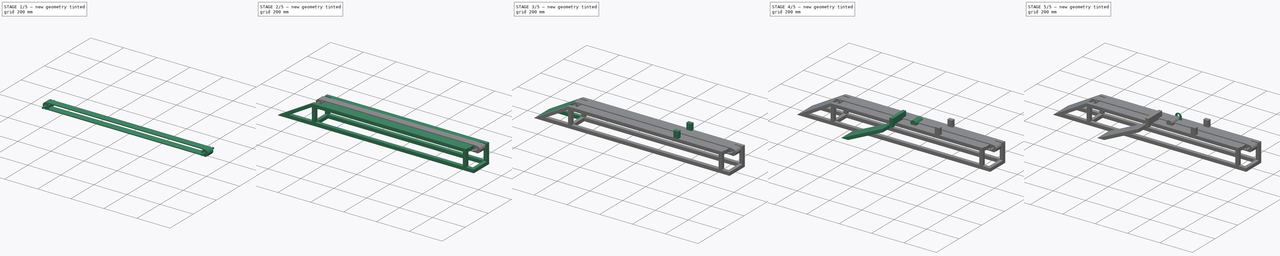
[diagram: build sequence overview — one tinted view per stage of 5, left to right]
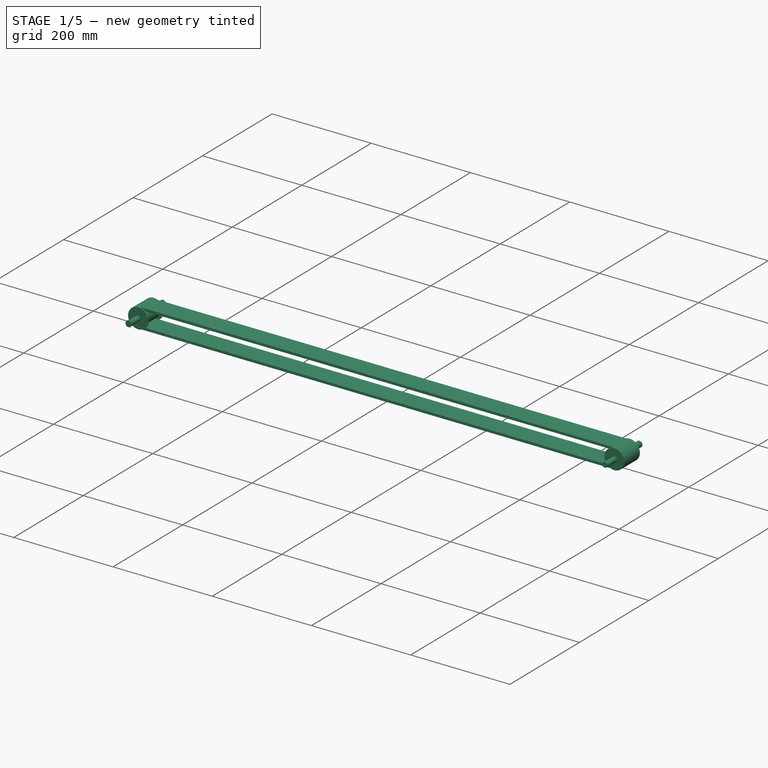
[diagram: stage 1 of 5 — iso view after this stage's code; geometry added in this stage tinted green]
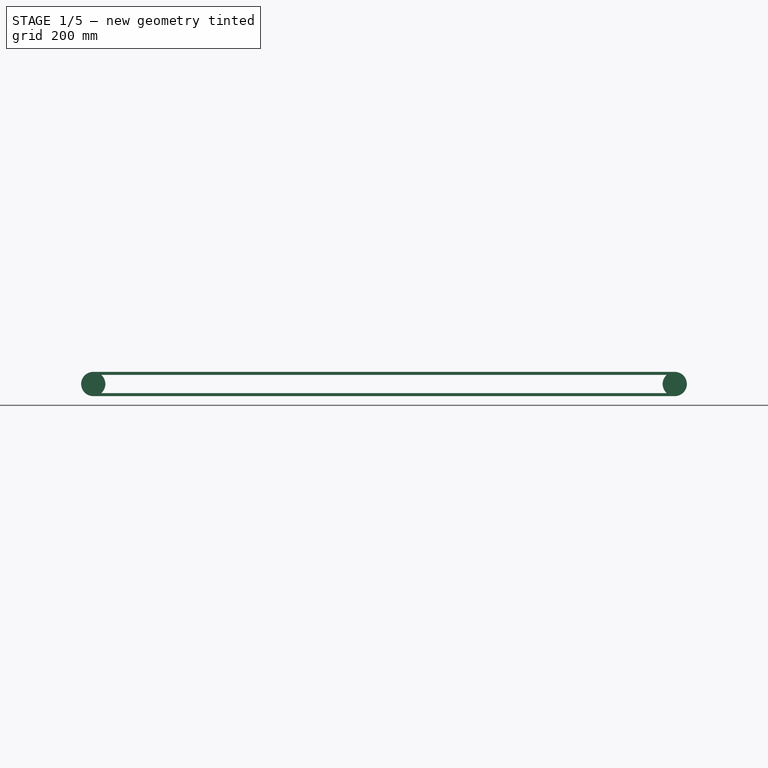
[diagram: stage 1 of 5 — front view after this stage's code; geometry added in this stage tinted green]
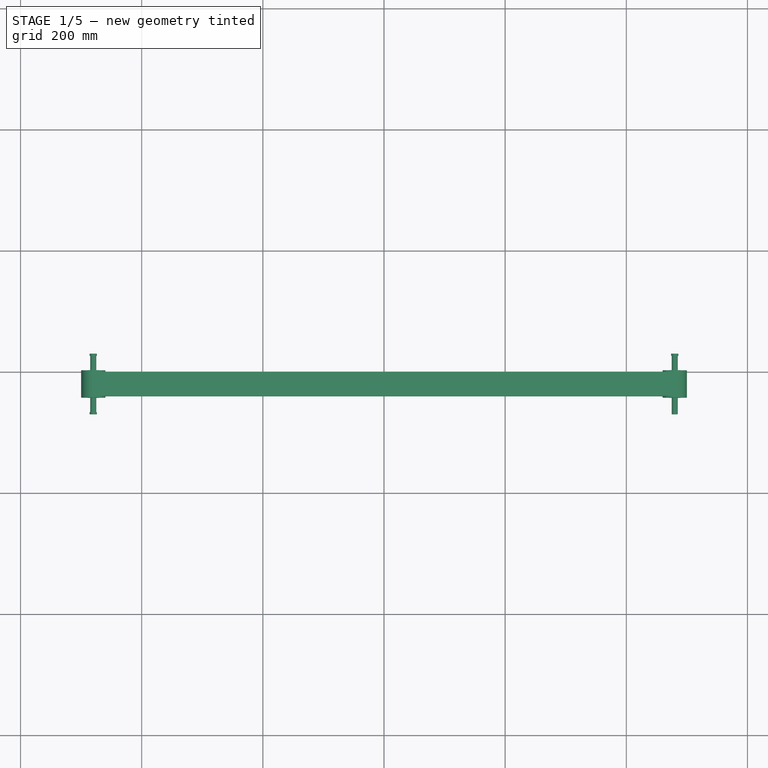
[diagram: stage 1 of 5 — top view after this stage's code; geometry added in this stage tinted green]
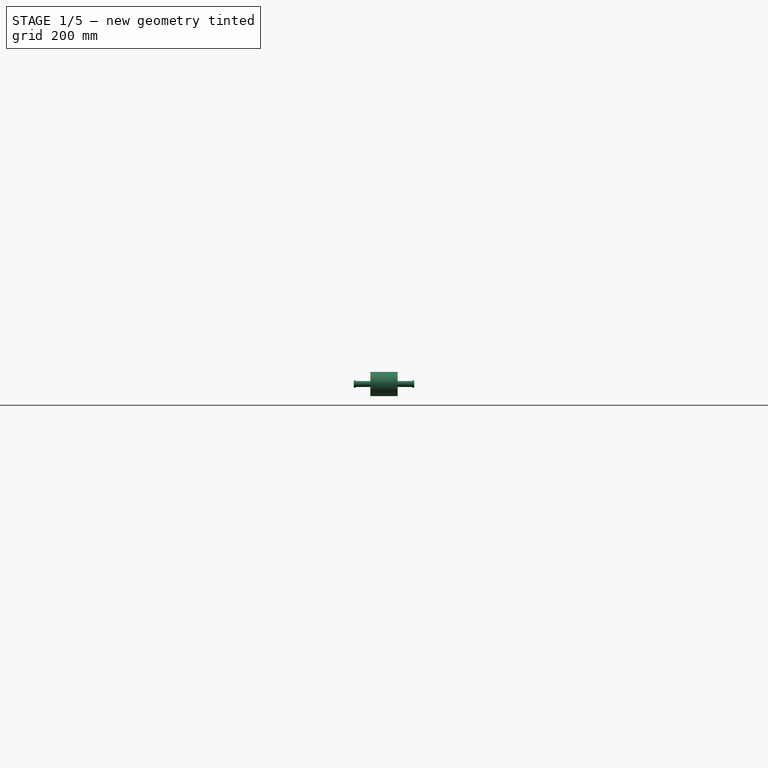
[diagram: stage 1 of 5 — right view after this stage's code; geometry added in this stage tinted green]
FCSTD DOCUMENT  (FreeCAD 0.20R29603 (Git))
Label: 기구도
License: All rights reserved
LicenseURL: http://en.wikipedia.org/wiki/All_rights_reserved
objects: Sketcher::SketchObject×43, PartDesign::Pad×32, PartDesign::Pocket×8, PartDesign::Fillet×4, PartDesign::Body×4, PartDesign::Plane×3, PartDesign::Mirrored×1
note: 139 computed .brp shape members not serialized (recipe doc carries the construction recipe); baked Part::Feature solids carry a one-line shape summary decoded from their .brp

FEATURE [Sketcher::SketchObject] Sketch
  FullyConstrained = true
  MapMode = 5
  Placement = pos=(0,0,0) rot=(1,0,0;1.5708rad)
  Support = -> [XZ_Plane]
  sketch-geometry (4):
    g0: LineSegment StartX=-480 StartY=20 StartZ=0 EndX=480 EndY=20 EndZ=0
    g1: LineSegment StartX=480 StartY=-20 StartZ=0 EndX=-480 EndY=-20 EndZ=0
    g2: ArcOfCircle CenterX=480 CenterY=3e-16 CenterZ=0 NormalX=0 NormalY=0 NormalZ=1 AngleXU=0 Radius=20 StartAngle=4.71239 EndAngle=7.85398
    g3: ArcOfCircle CenterX=-480 CenterY=0 CenterZ=0 NormalX=0 NormalY=0 NormalZ=1 AngleXU=0 Radius=20 StartAngle=1.5708 EndAngle=4.71239
  constraints (10):
    c: Horizontal(g0)
    c: Horizontal(g1)
    c: PointOnObject(g3,g-1)
    c: Diameter(g2) = 40
    c: Tangent(g2,g0) = 1.5708
    c: Tangent(g2,g1) = 1.5708
    c: Tangent(g3,g0) = 1.5708
    c: Tangent(g3,g1) = 1.5708
    c: DistanceX(g3,g2) = 960
    c: DistanceX(g-1,g2) = 480
FEATURE [PartDesign::Pad] Pad
  Direction = (0,-1,-2e-16)
  Length = 40
  Length2 = 10
  Placement = pos=(0,0,0) rot=(1,0,0;1.5708rad)
  Profile = -> Sketch
  ReferenceAxis = -> Sketch [N_Axis]
  Type = 0
FEATURE [Sketcher::SketchObject] Sketch001
  ExternalGeometry = -> [Pad]
  FullyConstrained = true
  MapMode = 5
  Placement = pos=(0,0,0) rot=(-1,0,0;1.5708rad)
  Support = -> [Pad]
  sketch-geometry (4):
    g0: LineSegment StartX=-480 StartY=15 StartZ=0 EndX=480 EndY=15 EndZ=0
    g1: LineSegment StartX=480 StartY=-15 StartZ=0 EndX=-480 EndY=-15 EndZ=0
    g2: ArcOfCircle CenterX=480 CenterY=-3e-16 CenterZ=0 NormalX=0 NormalY=0 NormalZ=1 AngleXU=0 Radius=15 StartAngle=4.71239 EndAngle=7.85398
    g3: ArcOfCircle CenterX=-480 CenterY=0 CenterZ=0 NormalX=0 NormalY=0 NormalZ=1 AngleXU=0 Radius=15 StartAngle=1.5708 EndAngle=4.71239
  constraints (9):
    c: Horizontal(g0)
    c: Horizontal(g1)
    c: Tangent(g3,g0) = 1.5708
    c: Tangent(g3,g1) = 1.5708
    c: Tangent(g2,g0) = 1.5708
    c: Coincident(g2,g1)
    c: Diameter(g2) = 30
    c: Coincident(g3,g-4)
    c: Coincident(g2,g-6)
FEATURE [PartDesign::Pocket] Pocket
  BaseFeature = -> Pad
  Direction = (0,-1,-2e-16)
  Length = 5
  Length2 = 5
  Placement = pos=(0,0,0) rot=(1,0,0;1.5708rad)
  Profile = -> Sketch001
  ReferenceAxis = -> Sketch001 [N_Axis]
  Type = 1
FEATURE [PartDesign::Plane] DatumPlane
  AttachmentOffset = pos=(0,0,-20) rot=(0,0,1;0rad)
  Length = 1288.24
  MapMode = 5
  Placement = pos=(0,-20,-4.4e-15) rot=(-1,0,0;1.5708rad)
  ResizeMode = 0
  Support = -> [Pocket]
  Width = 247.657
FEATURE [Sketcher::SketchObject] Sketch002
  ExternalGeometry = -> [Pocket]
  FullyConstrained = true
  MapMode = 5
  Placement = pos=(0,-20,-4.4e-15) rot=(-1,0,0;1.5708rad)
  Support = -> [DatumPlane]
  sketch-geometry (2):
    g0: Circle CenterX=-480 CenterY=0 CenterZ=0 NormalX=0 NormalY=0 NormalZ=1 AngleXU=0 Radius=15
    g1: Circle CenterX=480 CenterY=-3e-16 CenterZ=0 NormalX=0 NormalY=0 NormalZ=1 AngleXU=0 Radius=15
  constraints (4):
    c: Coincident(g0,g-3)
    c: PointOnObject(g-3,g0)
    c: Coincident(g1,g-4)
    c: PointOnObject(g-4,g1)
FEATURE [PartDesign::Pad] Pad001
  BaseFeature = -> Pocket
  Direction = (0,1,2e-16)
  Length = 40
  Length2 = 10
  Midplane = true
  Placement = pos=(0,0,0) rot=(1,0,0;1.5708rad)
  Profile = -> Sketch002
  ReferenceAxis = -> Sketch002 [N_Axis]
  Type = 0
FEATURE [Sketcher::SketchObject] Sketch003
  ExternalGeometry = -> [Pad001]
  FullyConstrained = true
  MapMode = 5
  Placement = pos=(0,3.6e-15,0) rot=(-1,0,0;1.5708rad)
  Support = -> [Pad001]
  sketch-geometry (2):
    g0: Circle CenterX=-480 CenterY=0 CenterZ=0 NormalX=0 NormalY=0 NormalZ=1 AngleXU=0 Radius=20
    g1: Circle CenterX=480 CenterY=-3e-16 CenterZ=0 NormalX=0 NormalY=0 NormalZ=1 AngleXU=0 Radius=20
  constraints (4):
    c: Coincident(g0,g-3)
    c: PointOnObject(g-3,g0)
    c: Coincident(g1,g-4)
    c: PointOnObject(g-4,g1)
FEATURE [PartDesign::Pad] Pad002
  BaseFeature = -> Pad001
  Direction = (0,1,2e-16)
  Length = 2.5
  Length2 = 10
  Placement = pos=(0,0,0) rot=(1,0,0;1.5708rad)
  Profile = -> Sketch003
  ReferenceAxis = -> Sketch003 [N_Axis]
  Type = 0
FEATURE [Sketcher::SketchObject] Sketch004
  ExternalGeometry = -> [Pad002]
  FullyConstrained = true
  MapMode = 5
  Placement = pos=(0,-40,-1.9e-15) rot=(1,0,0;1.5708rad)
  Support = -> [Pad002]
  sketch-geometry (2):
    g0: Circle CenterX=-480 CenterY=2.1e-15 CenterZ=0 NormalX=0 NormalY=0 NormalZ=1 AngleXU=0 Radius=20
    g1: Circle CenterX=480 CenterY=2.4e-15 CenterZ=0 NormalX=0 NormalY=0 NormalZ=1 AngleXU=0 Radius=20
  constraints (4):
    c: Coincident(g0,g-4)
    c: PointOnObject(g-4,g0)
    c: Coincident(g1,g-3)
    c: PointOnObject(g-3,g1)
FEATURE [PartDesign::Pad] Pad003
  BaseFeature = -> Pad002
  Direction = (0,-1,2e-16)
  Length = 2.5
  Length2 = 10
  Placement = pos=(0,0,0) rot=(1,0,0;1.5708rad)
  Profile = -> Sketch004
  ReferenceAxis = -> Sketch004 [N_Axis]
  Type = 0
FEATURE [Sketcher::SketchObject] Sketch005
  ExternalGeometry = -> [Pad003]
  FullyConstrained = true
  MapMode = 5
  Placement = pos=(0,2.5,0) rot=(-1,0,0;1.5708rad)
  Support = -> [Pad003]
  sketch-geometry (2):
    g0: Circle CenterX=-480 CenterY=0 CenterZ=0 NormalX=0 NormalY=0 NormalZ=1 AngleXU=0 Radius=5
    g1: Circle CenterX=480 CenterY=0 CenterZ=0 NormalX=0 NormalY=0 NormalZ=1 AngleXU=0 Radius=5
  constraints (4):
    c: Coincident(g0,g-4)
    c: Diameter(g0) = 10
    c: Coincident(g1,g-3)
    c: Diameter(g1) = 10
FEATURE [PartDesign::Pocket] Pocket001
  BaseFeature = -> Pad003
  Direction = (0,-1,2e-16)
  Length = 5
  Length2 = 5
  Placement = pos=(0,0,0) rot=(1,0,0;1.5708rad)
  Profile = -> Sketch005
  ReferenceAxis = -> Sketch005 [N_Axis]
  Type = 1
FEATURE [PartDesign::Plane] DatumPlane001
  AttachmentOffset = pos=(0,0,-22.5) rot=(0,0,1;0rad)
  Length = 1288.24
  MapMode = 5
  Placement = pos=(0,-20,-5e-15) rot=(-1,0,0;1.5708rad)
  ResizeMode = 0
  Support = -> [Pocket001]
  Width = 247.657
FEATURE [Sketcher::SketchObject] Sketch006
  ExternalGeometry = -> [Pocket001]
  FullyConstrained = true
  MapMode = 5
  Placement = pos=(0,-20,-5e-15) rot=(-1,0,0;1.5708rad)
  Support = -> [DatumPlane001]
  sketch-geometry (2):
    g0: Circle CenterX=-480 CenterY=0 CenterZ=0 NormalX=0 NormalY=0 NormalZ=1 AngleXU=0 Radius=5
    g1: Circle CenterX=480 CenterY=0 CenterZ=0 NormalX=0 NormalY=0 NormalZ=1 AngleXU=0 Radius=5
  constraints (4):
    c: Coincident(g0,g-4)
    c: Coincident(g1,g-3)
    c: Diameter(g1) = 10
    c: Diameter(g0) = 10
FEATURE [PartDesign::Pad] Pad004
  BaseFeature = -> Pocket001
  Direction = (0,1,-2e-16)
  Length = 100
  Length2 = 10
  Midplane = true
  Placement = pos=(0,0,0) rot=(1,0,0;1.5708rad)
  Profile = -> Sketch006
  ReferenceAxis = -> Sketch006 [N_Axis]
  Type = 0
FEATURE [Sketcher::SketchObject] Sketch007
  ExternalGeometry = -> [Pad004]
  FullyConstrained = true
  MapMode = 5
  Placement = pos=(0,30,-6.7e-15) rot=(-1,0,0;1.5708rad)
  Support = -> [Pad004]
  sketch-geometry (4):
    g0: Circle CenterX=-480 CenterY=0 CenterZ=0 NormalX=0 NormalY=0 NormalZ=1 AngleXU=0 Radius=4
    g1: Circle CenterX=-480 CenterY=0 CenterZ=0 NormalX=0 NormalY=0 NormalZ=1 AngleXU=0 Radius=6
    g2: Circle CenterX=480 CenterY=0 CenterZ=0 NormalX=0 NormalY=0 NormalZ=1 AngleXU=0 Radius=6
    g3: Circle CenterX=480 CenterY=0 CenterZ=0 NormalX=0 NormalY=0 NormalZ=1 AngleXU=0 Radius=4
  constraints (8):
    c: Coincident(g0,g-3)
    c: Coincident(g1,g0)
    c: Diameter(g0) = 8
    c: Diameter(g1) = 12
    c: Coincident(g2,g-4)
    c: Coincident(g3,g2)
    c: Diameter(g3) = 8
    c: Diameter(g2) = 12
FEATURE [PartDesign::Pad] Pad005
  BaseFeature = -> Pad004
  Direction = (0,1,-2e-16)
  Length = 3.5
  Length2 = 10
  Placement = pos=(0,0,0) rot=(1,0,0;1.5708rad)
  Profile = -> Sketch007
  ReferenceAxis = -> Sketch007 [N_Axis]
  Reversed = true
  Type = 0
FEATURE [Sketcher::SketchObject] Sketch008
  ExternalGeometry = -> [Pad005]
  FullyConstrained = true
  MapMode = 5
  Placement = pos=(0,-70,1.55e-14) rot=(1,0,0;1.5708rad)
  Support = -> [Pad005]
  sketch-geometry (2):
    g0: Circle CenterX=-480 CenterY=0 CenterZ=0 NormalX=0 NormalY=0 NormalZ=1 AngleXU=0 Radius=4
    g1: Circle CenterX=-480 CenterY=0 CenterZ=0 NormalX=0 NormalY=0 NormalZ=1 AngleXU=0 Radius=6
  constraints (4):
    c: Coincident(g0,g-3)
    c: Coincident(g1,g0)
    c: Diameter(g0) = 8
    c: Diameter(g1) = 12
FEATURE [PartDesign::Pad] Pad006
  BaseFeature = -> Pad005
  Direction = (0,-1,2e-16)
  Length = 3.5
  Length2 = 10
  Placement = pos=(0,0,0) rot=(1,0,0;1.5708rad)
  Profile = -> Sketch008
  ReferenceAxis = -> Sketch008 [N_Axis]
  Reversed = true
  Type = 0
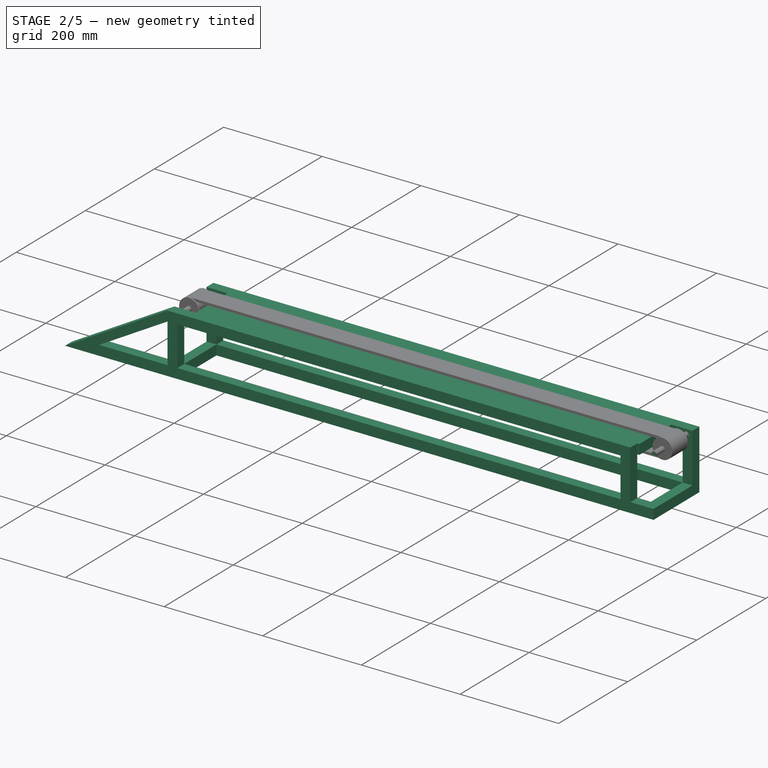
[diagram: stage 2 of 5 — iso view after this stage's code; geometry added in this stage tinted green]
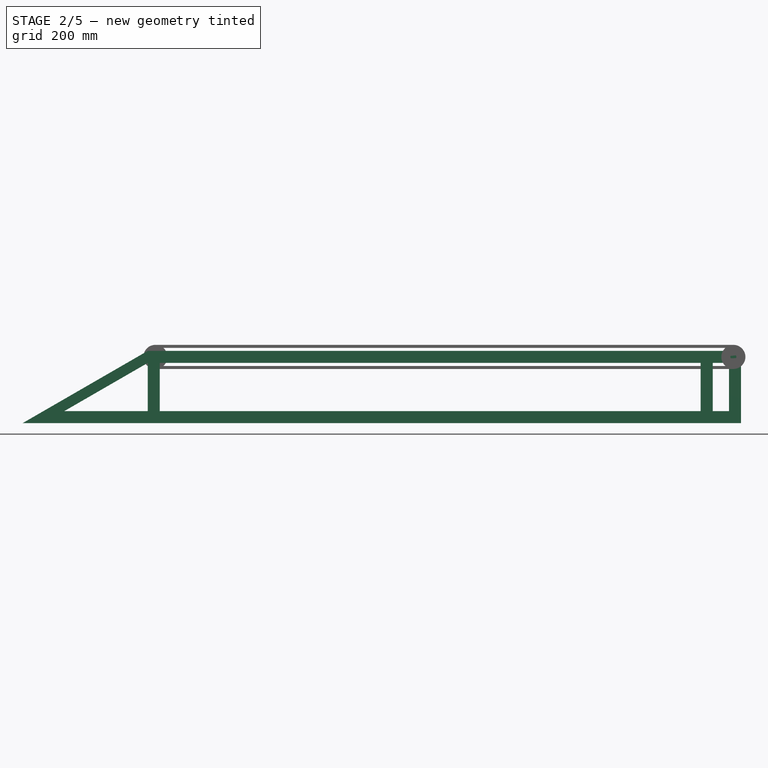
[diagram: stage 2 of 5 — front view after this stage's code; geometry added in this stage tinted green]
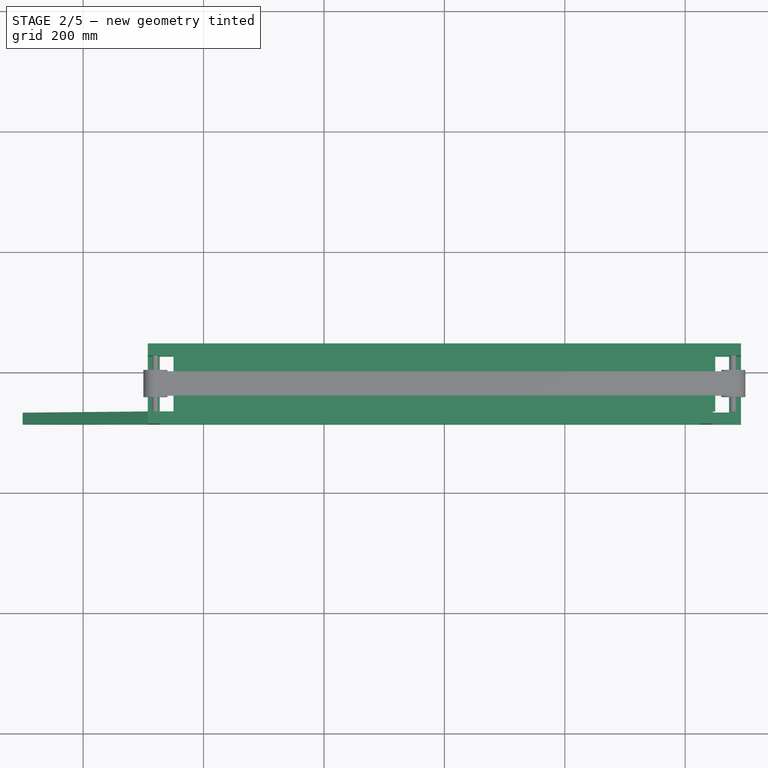
[diagram: stage 2 of 5 — top view after this stage's code; geometry added in this stage tinted green]
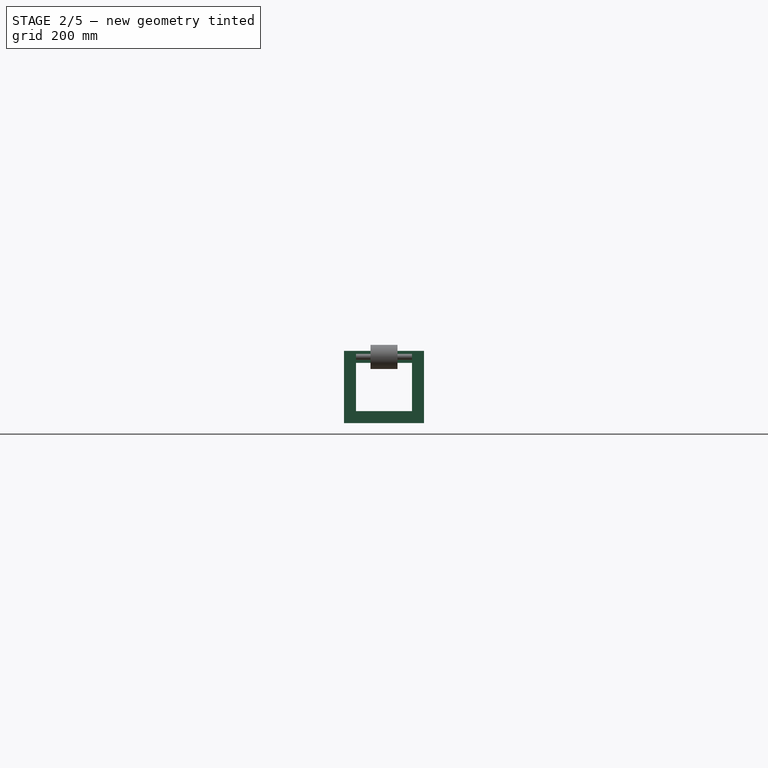
[diagram: stage 2 of 5 — right view after this stage's code; geometry added in this stage tinted green]
FEATURE [PartDesign::Plane] DatumPlane002
  Length = 271.616
  MapMode = 45
  Placement = pos=(-492.732,-20,-5.5e-15) rot=(0.57735,0.57735,0.57735;2.0944rad)
  ResizeMode = 0
  Support = -> [Pad006]
  Width = 198.616
FEATURE [Sketcher::SketchObject] Sketch009
  ExternalGeometry = -> [Pad006]
  FullyConstrained = false
  MapMode = 5
  Placement = pos=(-492.732,-20,-5.5e-15) rot=(0.57735,0.57735,0.57735;2.0944rad)
  Support = -> [DatumPlane002]
  sketch-geometry (5):
    g0: LineSegment StartX=46.5 StartY=10 StartZ=0 EndX=66.5 EndY=10 EndZ=0
    g1: LineSegment StartX=66.5 StartY=10 StartZ=0 EndX=66.5 EndY=-10 EndZ=0
    g2: LineSegment StartX=66.5 StartY=-10 StartZ=0 EndX=46.5 EndY=-10 EndZ=0
    g3: LineSegment StartX=46.5 StartY=-10 StartZ=0 EndX=46.5 EndY=10 EndZ=0
    g4: GeomPoint X=63.3667 Y=0 Z=0
  constraints (13):
    c: Coincident(g0,g1)
    c: Coincident(g1,g2)
    c: Coincident(g2,g3)
    c: Coincident(g3,g0)
    c: Horizontal(g0)
    c: Horizontal(g2)
    c: Vertical(g1)
    c: Vertical(g3)
    c: DistanceX(g0,g0) = 20
    c: DistanceY(g1,g1) = 20
    c: PointOnObject(g4,g-1)
    c: DistanceY(g4,g0) = 10
    c: PointOnObject(g-3,g3)
FEATURE [PartDesign::Pad] Pad007
  BaseFeature = -> Pad006
  Direction = (1,0,7e-16)
  Length = 985.46
  Length2 = 10
  Placement = pos=(0,0,0) rot=(1,0,0;1.5708rad)
  Profile = -> Sketch009
  ReferenceAxis = -> Sketch009 [N_Axis]
  Type = 0
FEATURE [PartDesign::Mirrored] Mirrored
  BaseFeature = -> Pad007
  MirrorPlane = -> Sketch009 [V_Axis]
  Originals = -> [Pad007]
  Placement = pos=(0,0,0) rot=(1,0,0;1.5708rad)
FEATURE [Sketcher::SketchObject] Sketch011
  ExternalGeometry = -> [Mirrored]
  FullyConstrained = true
  MapMode = 5
  Placement = pos=(6.7e-15,-1e-14,-10) rot=(1,0,0;3.14159rad)
  Support = -> [Mirrored]
  sketch-geometry (16):
    g0: LineSegment StartX=492.728 StartY=86.5 StartZ=0 EndX=472.728 EndY=86.5 EndZ=0
    g1: LineSegment StartX=472.728 StartY=86.5 StartZ=0 EndX=472.728 EndY=66.5 EndZ=0
    g2: LineSegment StartX=472.728 StartY=66.5 StartZ=0 EndX=492.728 EndY=66.5 EndZ=0
    g3: LineSegment StartX=492.728 StartY=66.5 StartZ=0 EndX=492.728 EndY=86.5 EndZ=0
    g4: LineSegment StartX=492.728 StartY=-26.5 StartZ=0 EndX=472.728 EndY=-26.5 EndZ=0
    g5: LineSegment StartX=472.728 StartY=-26.5 StartZ=0 EndX=472.728 EndY=-46.5 EndZ=0
    g6: LineSegment StartX=472.728 StartY=-46.5 StartZ=0 EndX=492.728 EndY=-46.5 EndZ=0
    g7: LineSegment StartX=492.728 StartY=-46.5 StartZ=0 EndX=492.728 EndY=-26.5 EndZ=0
    g8: LineSegment StartX=-492.732 StartY=86.5 StartZ=0 EndX=-472.732 EndY=86.5 EndZ=0
    g9: LineSegment StartX=-472.732 StartY=86.5 StartZ=0 EndX=-472.732 EndY=66.5 EndZ=0
    g10: LineSegment StartX=-472.732 StartY=66.5 StartZ=0 EndX=-492.732 EndY=66.5 EndZ=0
    g11: LineSegment StartX=-492.732 StartY=66.5 StartZ=0 EndX=-492.732 EndY=86.5 EndZ=0
    g12: LineSegment StartX=-492.732 StartY=-26.5 StartZ=0 EndX=-472.732 EndY=-26.5 EndZ=0
    g13: LineSegment StartX=-472.732 StartY=-26.5 StartZ=0 EndX=-472.732 EndY=-46.5 EndZ=0
    g14: LineSegment StartX=-472.732 StartY=-46.5 StartZ=0 EndX=-492.732 EndY=-46.5 EndZ=0
    g15: LineSegment StartX=-492.732 StartY=-46.5 StartZ=0 EndX=-492.732 EndY=-26.5 EndZ=0
  constraints (44):
    c: Coincident(g0,g1)
    c: Coincident(g1,g2)
    c: Coincident(g2,g3)
    c: Coincident(g3,g0)
    c: Horizontal(g0)
    c: Horizontal(g2)
    c: Vertical(g1)
    c: Vertical(g3)
    c: Coincident(g0,g-4)
    c: PointOnObject(g1,g-7)
    c: DistanceX(g0,g0) = 20
    c: Coincident(g4,g5)
    c: Coincident(g5,g6)
    c: Coincident(g6,g7)
    c: Coincident(g7,g4)
    c: Horizontal(g4)
    c: Horizontal(g6)
    c: Vertical(g5)
    c: Vertical(g7)
    c: Coincident(g4,g-8)
    c: PointOnObject(g5,g-6)
    c: Coincident(g8,g9)
    c: Coincident(g9,g10)
    c: Coincident(g10,g11)
    c: Coincident(g11,g8)
    c: Horizontal(g8)
    c: Horizontal(g10)
    c: Vertical(g9)
    c: Vertical(g11)
    c: Coincident(g8,g-4)
    c: PointOnObject(g9,g-7)
    c: Coincident(g12,g13)
    c: Coincident(g13,g14)
    c: Coincident(g14,g15)
    c: Coincident(g15,g12)
    c: Horizontal(g12)
    c: Horizontal(g14)
    c: Vertical(g13)
    c: Vertical(g15)
    c: Coincident(g12,g-8)
    c: PointOnObject(g13,g-6)
    c: Equal(g0,g4)
    c: Equal(g0,g8)
    c: Equal(g0,g12)
FEATURE [PartDesign::Pad] Pad008
  BaseFeature = -> Mirrored
  Direction = (7e-16,-9e-16,-1)
  Length = 100
  Length2 = 10
  Placement = pos=(0,0,0) rot=(1,0,0;1.5708rad)
  Profile = -> Sketch011
  ReferenceAxis = -> Sketch011 [N_Axis]
  Type = 0
FEATURE [Sketcher::SketchObject] Sketch012
  ExternalGeometry = -> [Pad008]
  FullyConstrained = true
  MapMode = 5
  Placement = pos=(0,26.5,-2.66e-14) rot=(1,0,0;1.5708rad)
  Support = -> [Pad008]
  sketch-geometry (8):
    g0: LineSegment StartX=492.728 StartY=-110 StartZ=0 EndX=472.728 EndY=-110 EndZ=0
    g1: LineSegment StartX=472.728 StartY=-110 StartZ=0 EndX=472.728 EndY=-90 EndZ=0
    g2: LineSegment StartX=472.728 StartY=-90 StartZ=0 EndX=492.728 EndY=-90 EndZ=0
    g3: LineSegment StartX=492.728 StartY=-90 StartZ=0 EndX=492.728 EndY=-110 EndZ=0
    g4: LineSegment StartX=-472.732 StartY=-110 StartZ=0 EndX=-492.732 EndY=-110 EndZ=0
    g5: LineSegment StartX=-492.732 StartY=-110 StartZ=0 EndX=-492.732 EndY=-90 EndZ=0
    g6: LineSegment StartX=-492.732 StartY=-90 StartZ=0 EndX=-472.732 EndY=-90 EndZ=0
    g7: LineSegment StartX=-472.732 StartY=-90 StartZ=0 EndX=-472.732 EndY=-110 EndZ=0
  constraints (22):
    c: Coincident(g0,g1)
    c: Coincident(g1,g2)
    c: Coincident(g2,g3)
    c: Coincident(g3,g0)
    c: Horizontal(g0)
    c: Horizontal(g2)
    c: Vertical(g1)
    c: Vertical(g3)
    c: Coincident(g0,g-5)
    c: PointOnObject(g1,g-4)
    c: DistanceY(g3,g3) = 20
    c: Coincident(g4,g5)
    c: Coincident(g5,g6)
    c: Coincident(g6,g7)
    c: Coincident(g7,g4)
    c: Horizontal(g4)
    c: Horizontal(g6)
    c: Vertical(g5)
    c: Vertical(g7)
    c: Coincident(g4,g-7)
    c: DistanceY(g7,g7) = 20
    c: PointOnObject(g5,g-8)
FEATURE [PartDesign::Pad] Pad009
  BaseFeature = -> Pad008
  Direction = (0,-1,7e-16)
  Length = 10
  Length2 = 10
  Placement = pos=(0,0,0) rot=(1,0,0;1.5708rad)
  Profile = -> Sketch012
  ReferenceAxis = -> Sketch012 [N_Axis]
  Type = 3
  UpToFace = -> Pad008 [Face6]
FEATURE [Sketcher::SketchObject] Sketch013
  ExternalGeometry = -> [Pad009]
  FullyConstrained = true
  MapMode = 5
  Placement = pos=(-472.732,0,-3.15e-13) rot=(0.707107,0,0.707107;3.14159rad)
  sketch-geometry (8):
    g0: LineSegment StartX=-110 StartY=86.5 StartZ=0 EndX=-90 EndY=86.5 EndZ=0
    g1: LineSegment StartX=-90 StartY=86.5 StartZ=0 EndX=-90 EndY=66.5 EndZ=0
    g2: LineSegment StartX=-90 StartY=66.5 StartZ=0 EndX=-110 EndY=66.5 EndZ=0
    g3: LineSegment StartX=-110 StartY=66.5 StartZ=0 EndX=-110 EndY=86.5 EndZ=0
    g4: LineSegment StartX=-110 StartY=-46.5 StartZ=0 EndX=-90 EndY=-46.5 EndZ=0
    g5: LineSegment StartX=-90 StartY=-46.5 StartZ=0 EndX=-90 EndY=-26.5 EndZ=0
    g6: LineSegment StartX=-90 StartY=-26.5 StartZ=0 EndX=-110 EndY=-26.5 EndZ=0
    g7: LineSegment StartX=-110 StartY=-26.5 StartZ=0 EndX=-110 EndY=-46.5 EndZ=0
  constraints (20):
    c: Coincident(g0,g1)
    c: Coincident(g1,g2)
    c: Coincident(g2,g3)
    c: Coincident(g3,g0)
    c: Horizontal(g0)
    c: Horizontal(g2)
    c: Vertical(g1)
    c: Vertical(g3)
    c: Coincident(g4,g5)
    c: Coincident(g5,g6)
    c: Coincident(g6,g7)
    c: Coincident(g7,g4)
    c: Horizontal(g4)
    c: Horizontal(g6)
    c: Vertical(g5)
    c: Vertical(g7)
    c: Coincident(g5,g-3)
    c: Coincident(g1,g-4)
    c: Coincident(g4,g-6)
    c: Coincident(g0,g-5)
FEATURE [PartDesign::Pad] Pad010
  BaseFeature = -> Pad009
  Direction = (1,0,1.1e-15)
  Length = 10
  Length2 = 10
  Placement = pos=(0,0,0) rot=(1,0,0;1.5708rad)
  Profile = -> Sketch013
  ReferenceAxis = -> Sketch013 [N_Axis]
  Type = 3
  UpToFace = -> Pad009 [Face15]
FEATURE [Sketcher::SketchObject] Sketch014
  ExternalGeometry = -> [Pad010]
  FullyConstrained = true
  MapMode = 5
  Placement = pos=(0,26.5,-2.07e-14) rot=(1,0,0;1.5708rad)
  Support = -> [Pad010]
  sketch-geometry (6):
    g0: LineSegment StartX=-450 StartY=10 StartZ=0 EndX=450 EndY=10 EndZ=0
    g1: LineSegment StartX=450 StartY=10 StartZ=0 EndX=450 EndY=-10 EndZ=0
    g2: LineSegment StartX=450 StartY=-10 StartZ=0 EndX=-450 EndY=-10 EndZ=0
    g3: LineSegment StartX=-450 StartY=-10 StartZ=0 EndX=-450 EndY=10 EndZ=0
    g4: GeomPoint X=-460 Y=0 Z=0
    g5: GeomPoint X=460 Y=0 Z=0
  constraints (16):
    c: Coincident(g0,g1)
    c: Coincident(g1,g2)
    c: Coincident(g2,g3)
    c: Coincident(g3,g0)
    c: Horizontal(g0)
    c: Horizontal(g2)
    c: Vertical(g1)
    c: Vertical(g3)
    c: PointOnObject(g0,g-3)
    c: PointOnObject(g1,g-4)
    c: DistanceX(g0,g0) = 900
    c: PointOnObject(g4,g-1)
    c: PointOnObject(g5,g-5)
    c: PointOnObject(g5,g-1)
    c: PointOnObject(g4,g-6)
    c: DistanceX(g-1,g0) = 450
FEATURE [PartDesign::Pad] Pad011
  BaseFeature = -> Pad010
  Direction = (0,-1,1.1e-15)
  Length = 10
  Length2 = 10
  Placement = pos=(0,0,0) rot=(1,0,0;1.5708rad)
  Profile = -> Sketch014
  ReferenceAxis = -> Sketch014 [N_Axis]
  Type = 3
  UpToFace = -> Pad010 [Face2]
FEATURE [PartDesign::Body] Body002  label="dc모터"
  Group = -> [Sketch022,Pad015,Sketch023,Pad016,Sketch024,Pad017,Fillet001,Sketch025,Pad018,Sketch026,Pocket005,Sketch027,Pocket006]
  Origin = -> Origin002
  Placement = pos=(454,-66.5,0) rot=(0,1,0;1.5708rad)
  Tip = -> Pocket006
FEATURE [Sketcher::SketchObject] Sketch028
  ExternalGeometry = -> [Pad011]
  FullyConstrained = true
  MapMode = 5
  Placement = pos=(492.728,0,0) rot=(0.707107,0,0.707107;3.14159rad)
  Support = -> [Pad011]
  sketch-geometry (4):
    g0: LineSegment StartX=10 StartY=86.5 StartZ=0 EndX=-90 EndY=86.5 EndZ=0
    g1: LineSegment StartX=-90 StartY=86.5 StartZ=0 EndX=-90 EndY=66.5 EndZ=0
    g2: LineSegment StartX=-90 StartY=66.5 StartZ=0 EndX=10 EndY=66.5 EndZ=0
    g3: LineSegment StartX=10 StartY=66.5 StartZ=0 EndX=10 EndY=86.5 EndZ=0
  constraints (10):
    c: Coincident(g0,g1)
    c: Coincident(g1,g2)
    c: Coincident(g2,g3)
    c: Coincident(g3,g0)
    c: Horizontal(g0)
    c: Horizontal(g2)
    c: Vertical(g1)
    c: Vertical(g3)
    c: Coincident(g0,g-3)
    c: Coincident(g1,g-4)
FEATURE [PartDesign::Pocket] Pocket007
  BaseFeature = -> Pad011
  Direction = (-1,0,2e-16)
  Length = 47
  Length2 = 5
  Placement = pos=(0,0,0) rot=(1,0,0;1.5708rad)
  Profile = -> Sketch028
  ReferenceAxis = -> Sketch028 [N_Axis]
  Type = 0
FEATURE [Sketcher::SketchObject] Sketch029
  ExternalGeometry = -> [Pocket007]
  FullyConstrained = true
  MapMode = 5
  Placement = pos=(9.99e-14,-1.01e-14,-90) rot=(0,0,1;3.14159rad)
  Support = -> [Pocket007]
  sketch-geometry (4):
    g0: LineSegment StartX=-445.728 StartY=66.5 StartZ=0 EndX=-425.728 EndY=66.5 EndZ=0
    g1: LineSegment StartX=-425.728 StartY=66.5 StartZ=0 EndX=-425.728 EndY=86.5 EndZ=0
    g2: LineSegment StartX=-425.728 StartY=86.5 StartZ=0 EndX=-445.728 EndY=86.5 EndZ=0
    g3: LineSegment StartX=-445.728 StartY=86.5 StartZ=0 EndX=-445.728 EndY=66.5 EndZ=0
  constraints (11):
    c: Coincident(g0,g1)
    c: Coincident(g1,g2)
    c: Coincident(g2,g3)
    c: Coincident(g3,g0)
    c: Horizontal(g0)
    c: Horizontal(g2)
    c: Vertical(g1)
    c: Vertical(g3)
    c: Coincident(g0,g-4)
    c: PointOnObject(g1,g-5)
    c: DistanceX(g2,g2) = 20
FEATURE [PartDesign::Pad] Pad019
  BaseFeature = -> Pocket007
  Direction = (-1.1e-15,3e-16,1)
  Length = 10
  Length2 = 10
  Placement = pos=(0,0,0) rot=(1,0,0;1.5708rad)
  Profile = -> Sketch029
  ReferenceAxis = -> Sketch029 [N_Axis]
  Type = 3
  UpToFace = -> Pocket007 [Face44]
FEATURE [Sketcher::SketchObject] Sketch030
  ExternalGeometry = -> [Pad019]
  FullyConstrained = true
  MapMode = 5
  Placement = pos=(0,-86.5,8.67e-14) rot=(1,0,0;1.5708rad)
  Support = -> [Pad019]
  sketch-geometry (6):
    g0: LineSegment StartX=-492.732 StartY=10 StartZ=0 EndX=-700.578 EndY=-110 EndZ=0
    g1: LineSegment StartX=-700.578 StartY=-110 StartZ=0 EndX=-492.732 EndY=-110 EndZ=0
    g2: LineSegment StartX=-492.732 StartY=-110 StartZ=0 EndX=-492.732 EndY=-90 EndZ=0
    g3: LineSegment StartX=-492.732 StartY=-90 StartZ=0 EndX=-631.296 EndY=-90 EndZ=0
    g4: LineSegment StartX=-631.296 StartY=-90 StartZ=0 EndX=-492.732 EndY=-10 EndZ=0
    g5: LineSegment StartX=-492.732 StartY=-10 StartZ=0 EndX=-492.732 EndY=10 EndZ=0
  constraints (15):
    c: Coincident(g-4,g0)
    c: Coincident(g0,g1)
    c: Coincident(g1,g-8)
    c: Horizontal(g1)
    c: Coincident(g1,g2)
    c: Coincident(g2,g3)
    c: Horizontal(g3)
    c: Coincident(g3,g4)
    c: Coincident(g4,g-5)
    c: Coincident(g4,g5)
    c: Coincident(g5,g0)
    c: Parallel(g0,g4)
    c: PointOnObject(g2,g-5)
    c: Equal(g5,g2)
    c: Angle(g0,g5) = 1.0472
FEATURE [PartDesign::Pad] Pad020
  BaseFeature = -> Pad019
  Direction = (0,-1,1.8e-15)
  Length = 10
  Length2 = 10
  Placement = pos=(0,0,0) rot=(1,0,0;1.5708rad)
  Profile = -> Sketch030
  ReferenceAxis = -> Sketch030 [N_Axis]
  Type = 3
  UpToFace = -> Pad019 [Face34]
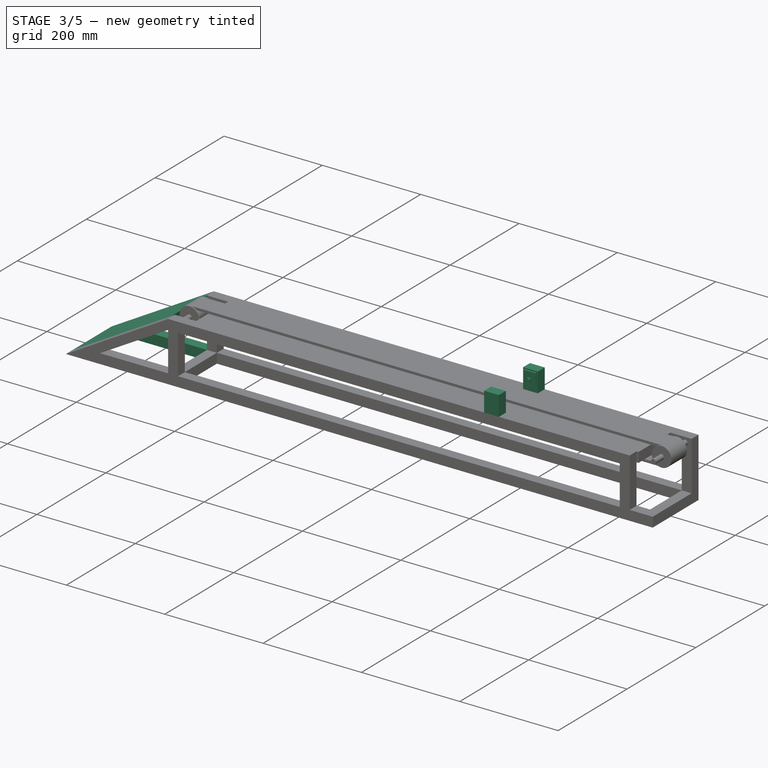
[diagram: stage 3 of 5 — iso view after this stage's code; geometry added in this stage tinted green]
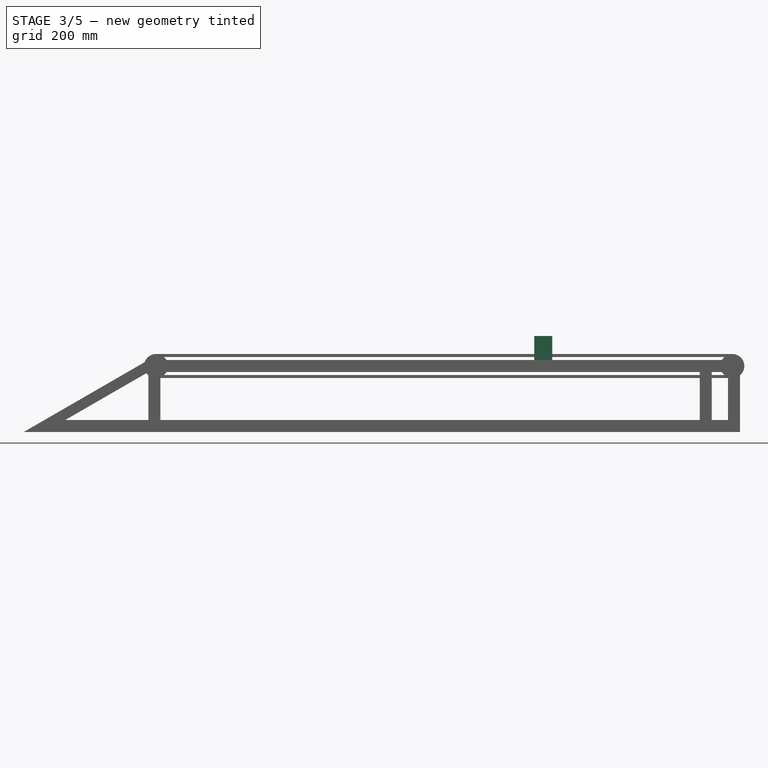
[diagram: stage 3 of 5 — front view after this stage's code; geometry added in this stage tinted green]
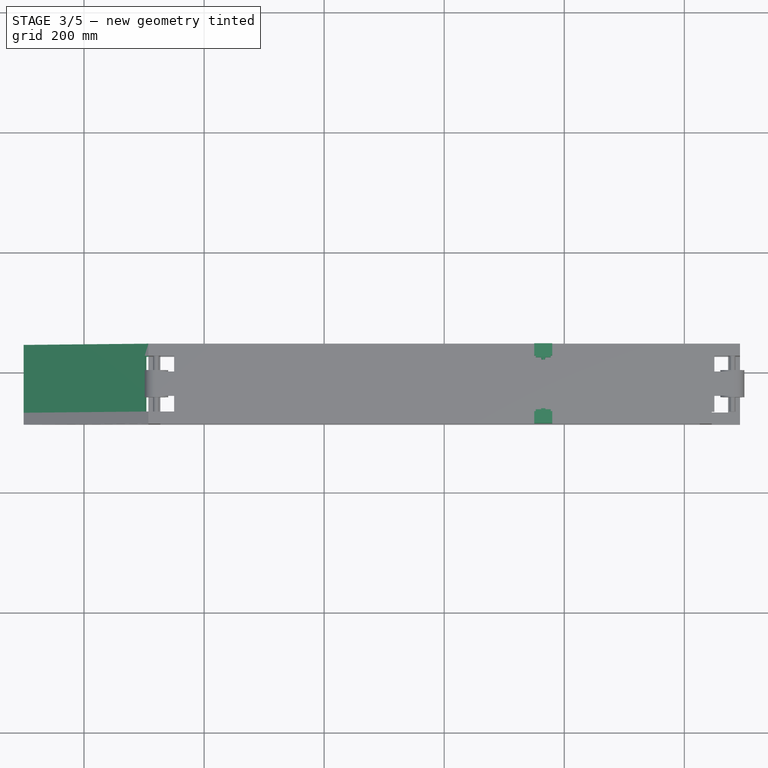
[diagram: stage 3 of 5 — top view after this stage's code; geometry added in this stage tinted green]
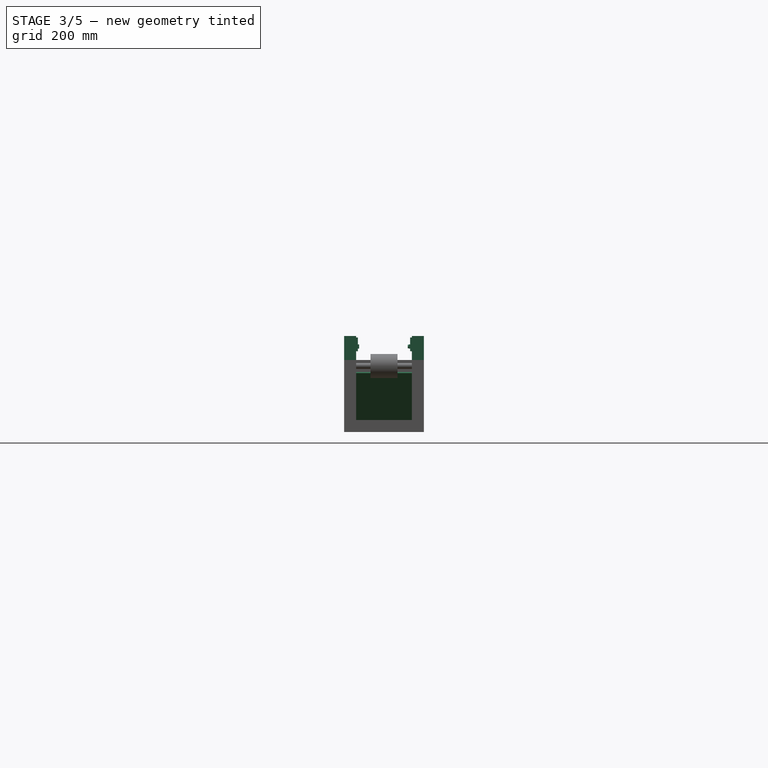
[diagram: stage 3 of 5 — right view after this stage's code; geometry added in this stage tinted green]
FEATURE [Sketcher::SketchObject] Sketch031
  ExternalGeometry = -> [Pad020]
  FullyConstrained = true
  MapMode = 5
  Placement = pos=(0,-66.5,1.105e-13) rot=(-1,0,0;1.5708rad)
  Support = -> [Pad020]
  sketch-geometry (4):
    g0: ArcOfCircle CenterX=-480 CenterY=5.3443e-12 CenterZ=0 NormalX=0 NormalY=0 NormalZ=1 AngleXU=0 Radius=20 StartAngle=2.50304 EndAngle=3.46806
    g1: LineSegment StartX=-498.944 StartY=-6.41394 StartZ=0 EndX=-700.578 EndY=110 EndZ=0
    g2: LineSegment StartX=-700.578 StartY=110 StartZ=0 EndX=-665.937 EndY=110 EndZ=0
    g3: LineSegment StartX=-665.937 StartY=110 StartZ=0 EndX=-496.059 EndY=11.9207 EndZ=0
  constraints (13):
    c: PointOnObject(g0,g-3)
    c: PointOnObject(g0,g-4)
    c: PointOnObject(g0,g-5)
    c: PointOnObject(g0,g-5)
    c: Diameter(g-5) = 40
    c: Diameter(g0) = 40
    c: Coincident(g0,g1)
    c: Coincident(g1,g2)
    c: Horizontal(g2)
    c: Coincident(g2,g3)
    c: Coincident(g3,g0)
    c: Coincident(g1,g-7)
    c: PointOnObject(g2,g-4)
FEATURE [PartDesign::Pad] Pad021
  BaseFeature = -> Pad020
  Direction = (0,1,-1.8e-15)
  Length = 10
  Length2 = 10
  Placement = pos=(0,0,0) rot=(1,0,0;1.5708rad)
  Profile = -> Sketch031
  ReferenceAxis = -> Sketch031 [N_Axis]
  Type = 3
  UpToFace = -> Pad020 [Face67]
FEATURE [Sketcher::SketchObject] Sketch032
  ExternalGeometry = -> [Pad021]
  FullyConstrained = true
  MapMode = 5
  Placement = pos=(0,46.5,-3.64e-14) rot=(-1,0,0;1.5708rad)
  Support = -> [Pad021]
  sketch-geometry (6):
    g0: LineSegment StartX=-492.732 StartY=-10 StartZ=0 EndX=-700.578 EndY=110 EndZ=0
    g1: LineSegment StartX=-700.578 StartY=110 StartZ=0 EndX=-492.732 EndY=110 EndZ=0
    g2: LineSegment StartX=-492.732 StartY=10 StartZ=0 EndX=-631.296 EndY=90 EndZ=0
    g3: LineSegment StartX=-492.732 StartY=90 StartZ=0 EndX=-631.296 EndY=90 EndZ=0
    g4: LineSegment StartX=-492.732 StartY=90 StartZ=0 EndX=-492.732 EndY=110 EndZ=0
    g5: LineSegment StartX=-492.732 StartY=-10 StartZ=0 EndX=-492.732 EndY=10 EndZ=0
  constraints (15):
    c: Coincident(g-4,g0)
    c: Coincident(g0,g1)
    c: Horizontal(g1)
    c: Coincident(g0,g-7)
    c: Coincident(g-9,g3)
    c: Horizontal(g3)
    c: PointOnObject(g3,g-8)
    c: Coincident(g2,g3)
    c: PointOnObject(g2,g-8)
    c: Coincident(g3,g4)
    c: Coincident(g4,g1)
    c: Vertical(g4)
    c: Coincident(g0,g5)
    c: Coincident(g5,g2)
    c: Vertical(g5)
FEATURE [PartDesign::Pad] Pad022
  BaseFeature = -> Pad021
  Direction = (0,1,-1.8e-15)
  Length = 10
  Length2 = 10
  Placement = pos=(0,0,0) rot=(1,0,0;1.5708rad)
  Profile = -> Sketch032
  ReferenceAxis = -> Sketch032 [N_Axis]
  Type = 3
  UpToFace = -> Pad021 [Face35]
FEATURE [Sketcher::SketchObject] Sketch033
  ExternalGeometry = -> [Pad022]
  FullyConstrained = true
  MapMode = 5
  Placement = pos=(-6.7e-15,1e-14,10) rot=(0,0,1;3.14159rad)
  Support = -> [Pad022]
  sketch-geometry (8):
    g0: LineSegment StartX=-180 StartY=86.5 StartZ=0 EndX=-150 EndY=86.5 EndZ=0
    g1: LineSegment StartX=-150 StartY=86.5 StartZ=0 EndX=-150 EndY=66.5 EndZ=0
    g2: LineSegment StartX=-150 StartY=66.5 StartZ=0 EndX=-180 EndY=66.5 EndZ=0
    g3: LineSegment StartX=-180 StartY=66.5 StartZ=0 EndX=-180 EndY=86.5 EndZ=0
    g4: LineSegment StartX=-180 StartY=-26.5 StartZ=0 EndX=-150 EndY=-26.5 EndZ=0
    g5: LineSegment StartX=-150 StartY=-26.5 StartZ=0 EndX=-150 EndY=-46.5 EndZ=0
    g6: LineSegment StartX=-150 StartY=-46.5 StartZ=0 EndX=-180 EndY=-46.5 EndZ=0
    g7: LineSegment StartX=-180 StartY=-46.5 StartZ=0 EndX=-180 EndY=-26.5 EndZ=0
  constraints (24):
    c: Coincident(g0,g1)
    c: Coincident(g1,g2)
    c: Coincident(g2,g3)
    c: Coincident(g3,g0)
    c: Horizontal(g0)
    c: Horizontal(g2)
    c: Vertical(g1)
    c: Vertical(g3)
    c: PointOnObject(g0,g-3)
    c: PointOnObject(g1,g-4)
    c: Coincident(g4,g5)
    c: Coincident(g5,g6)
    c: Coincident(g6,g7)
    c: Coincident(g7,g4)
    c: Horizontal(g4)
    c: Horizontal(g6)
    c: Vertical(g5)
    c: Vertical(g7)
    c: PointOnObject(g5,g-5)
    c: DistanceX(g0,g0) = 30
    c: Equal(g0,g4)
    c: PointOnObject(g4,g-6)
    c: DistanceX(g1,g-1) = 150
    c: Vertical(g2,g4)
FEATURE [PartDesign::Pad] Pad023
  BaseFeature = -> Pad022
  Direction = (-7e-16,1.9e-15,1)
  Length = 40
  Length2 = 10
  Placement = pos=(0,0,0) rot=(1,0,0;1.5708rad)
  Profile = -> Sketch033
  ReferenceAxis = -> Sketch033 [N_Axis]
  Type = 0
FEATURE [Sketcher::SketchObject] Sketch034
  ExternalGeometry = -> [Pad023]
  FullyConstrained = true
  MapMode = 5
  Placement = pos=(0,26.5,-5.31e-14) rot=(1,0,0;1.5708rad)
  Support = -> [Pad023]
  sketch-geometry (4):
    g0: LineSegment StartX=152.5 StartY=47.5 StartZ=0 EndX=177.5 EndY=47.5 EndZ=0
    g1: LineSegment StartX=177.5 StartY=47.5 StartZ=0 EndX=177.5 EndY=24.5 EndZ=0
    g2: LineSegment StartX=177.5 StartY=24.5 StartZ=0 EndX=152.5 EndY=24.5 EndZ=0
    g3: LineSegment StartX=152.5 StartY=24.5 StartZ=0 EndX=152.5 EndY=47.5 EndZ=0
  constraints (12):
    c: Coincident(g0,g1)
    c: Coincident(g1,g2)
    c: Coincident(g2,g3)
    c: Coincident(g3,g0)
    c: Horizontal(g0)
    c: Horizontal(g2)
    c: Vertical(g1)
    c: Vertical(g3)
    c: DistanceX(g0,g0) = 25
    c: DistanceY(g1,g1) = 23
    c: DistanceX(g0,g-5) = 2.5
    c: DistanceY(g0,g-5) = 2.5
FEATURE [PartDesign::Pad] Pad024
  BaseFeature = -> Pad023
  Direction = (0,-1,2.1e-15)
  Length = 3
  Length2 = 10
  Placement = pos=(0,0,0) rot=(1,0,0;1.5708rad)
  Profile = -> Sketch034
  ReferenceAxis = -> Sketch034 [N_Axis]
  Type = 0
FEATURE [Sketcher::SketchObject] Sketch036
  ExternalGeometry = -> [Pad024]
  FullyConstrained = true
  MapMode = 5
  Placement = pos=(0,23.5,-5.25e-14) rot=(1,0,0;1.5708rad)
  Support = -> [Pad024]
  sketch-geometry (4):
    g0: LineSegment StartX=161.5 StartY=36 StartZ=0 EndX=168.5 EndY=36 EndZ=0
    g1: LineSegment StartX=168.5 StartY=36 StartZ=0 EndX=168.5 EndY=29 EndZ=0
    g2: LineSegment StartX=168.5 StartY=29 StartZ=0 EndX=161.5 EndY=29 EndZ=0
    g3: LineSegment StartX=161.5 StartY=29 StartZ=0 EndX=161.5 EndY=36 EndZ=0
  constraints (13):
    c: Coincident(g0,g1)
    c: Coincident(g1,g2)
    c: Coincident(g2,g3)
    c: Coincident(g3,g0)
    c: Horizontal(g0)
    c: Horizontal(g2)
    c: Vertical(g1)
    c: Vertical(g3)
    c: DistanceX(g0,g0) = 7
    c: Equal(g0,g1)
    c: DistanceX(g-3,g-3) = 25
    c: DistanceX(g0,g-5) = 9
    c: DistanceY(g-6,g1) = 4.5
FEATURE [PartDesign::Pad] Pad025
  BaseFeature = -> Pad024
  Direction = (0,-1,2.4e-15)
  Length = 2
  Length2 = 10
  Placement = pos=(0,0,0) rot=(1,0,0;1.5708rad)
  Profile = -> Sketch036
  ReferenceAxis = -> Sketch036 [N_Axis]
  Type = 0
FEATURE [Sketcher::SketchObject] Sketch037
  ExternalGeometry = -> [Pad025]
  FullyConstrained = true
  MapMode = 5
  Placement = pos=(0,21.5,-5.94e-14) rot=(1,0,0;1.5708rad)
  Support = -> [Pad025]
  sketch-geometry (1):
    g0: Circle CenterX=165 CenterY=32.5 CenterZ=0 NormalX=0 NormalY=0 NormalZ=1 AngleXU=0 Radius=3
  constraints (3):
    c: Diameter(g0) = 6
    c: DistanceY(g0,g-4) = 3.5
    c: DistanceX(g0,g-4) = 3.5
FEATURE [PartDesign::Pad] Pad026
  BaseFeature = -> Pad025
  Direction = (0,-1,2.7e-15)
  Length = 2
  Length2 = 10
  Placement = pos=(0,0,0) rot=(1,0,0;1.5708rad)
  Profile = -> Sketch037
  ReferenceAxis = -> Sketch037 [N_Axis]
  Type = 0
FEATURE [PartDesign::Fillet] Fillet002
  Base = -> Pad026 [Edge310]
  BaseFeature = -> Pad026
  Placement = pos=(0,0,0) rot=(1,0,0;1.5708rad)
  Radius = 0.5
  SupportTransform = false
  UseAllEdges = false
FEATURE [Sketcher::SketchObject] Sketch038
  ExternalGeometry = -> [Fillet002]
  FullyConstrained = true
  MapMode = 5
  Placement = pos=(0,-66.5,1.331e-13) rot=(-1,0,0;1.5708rad)
  Support = -> [Fillet002]
  sketch-geometry (4):
    g0: LineSegment StartX=177.5 StartY=-47.5 StartZ=0 EndX=152.5 EndY=-47.5 EndZ=0
    g1: LineSegment StartX=152.5 StartY=-47.5 StartZ=0 EndX=152.5 EndY=-24.5 EndZ=0
    g2: LineSegment StartX=152.5 StartY=-24.5 StartZ=0 EndX=177.5 EndY=-24.5 EndZ=0
    g3: LineSegment StartX=177.5 StartY=-24.5 StartZ=0 EndX=177.5 EndY=-47.5 EndZ=0
  constraints (12):
    c: Coincident(g0,g1)
    c: Coincident(g1,g2)
    c: Coincident(g2,g3)
    c: Coincident(g3,g0)
    c: Horizontal(g0)
    c: Horizontal(g2)
    c: Vertical(g1)
    c: Vertical(g3)
    c: DistanceX(g0,g0) = 25
    c: DistanceY(g1,g1) = 23
    c: DistanceY(g-4,g0) = 2.5
    c: DistanceX(g-4,g0) = 2.5
FEATURE [PartDesign::Pad] Pad027
  BaseFeature = -> Fillet002
  Direction = (0,1,-2.4e-15)
  Length = 3
  Length2 = 10
  Placement = pos=(0,0,0) rot=(1,0,0;1.5708rad)
  Profile = -> Sketch038
  ReferenceAxis = -> Sketch038 [N_Axis]
  Type = 0
FEATURE [Sketcher::SketchObject] Sketch039
  ExternalGeometry = -> [Pad027]
  FullyConstrained = true
  MapMode = 5
  Placement = pos=(0,-63.5,1.709e-13) rot=(-1,0,0;1.5708rad)
  Support = -> [Pad027]
  sketch-geometry (4):
    g0: LineSegment StartX=168.5 StartY=-36 StartZ=0 EndX=161.5 EndY=-36 EndZ=0
    g1: LineSegment StartX=161.5 StartY=-36 StartZ=0 EndX=161.5 EndY=-29 EndZ=0
    g2: LineSegment StartX=161.5 StartY=-29 StartZ=0 EndX=168.5 EndY=-29 EndZ=0
    g3: LineSegment StartX=168.5 StartY=-29 StartZ=0 EndX=168.5 EndY=-36 EndZ=0
  constraints (12):
    c: Coincident(g0,g1)
    c: Coincident(g1,g2)
    c: Coincident(g2,g3)
    c: Coincident(g3,g0)
    c: Horizontal(g0)
    c: Horizontal(g2)
    c: Vertical(g1)
    c: Vertical(g3)
    c: Equal(g0,g1)
    c: DistanceX(g0,g0) = 7
    c: DistanceY(g1,g-4) = 4.5
    c: DistanceX(g-4,g0) = 9
FEATURE [PartDesign::Pad] Pad028
  BaseFeature = -> Pad027
  Direction = (0,1,-2.7e-15)
  Length = 2
  Length2 = 10
  Placement = pos=(0,0,0) rot=(1,0,0;1.5708rad)
  Profile = -> Sketch039
  ReferenceAxis = -> Sketch039 [N_Axis]
  Type = 0
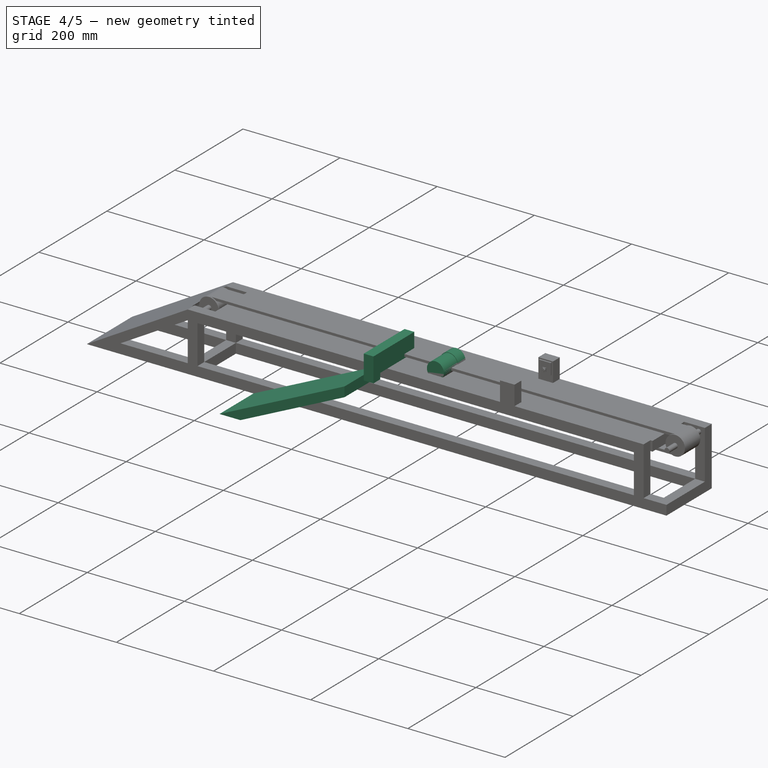
[diagram: stage 4 of 5 — iso view after this stage's code; geometry added in this stage tinted green]
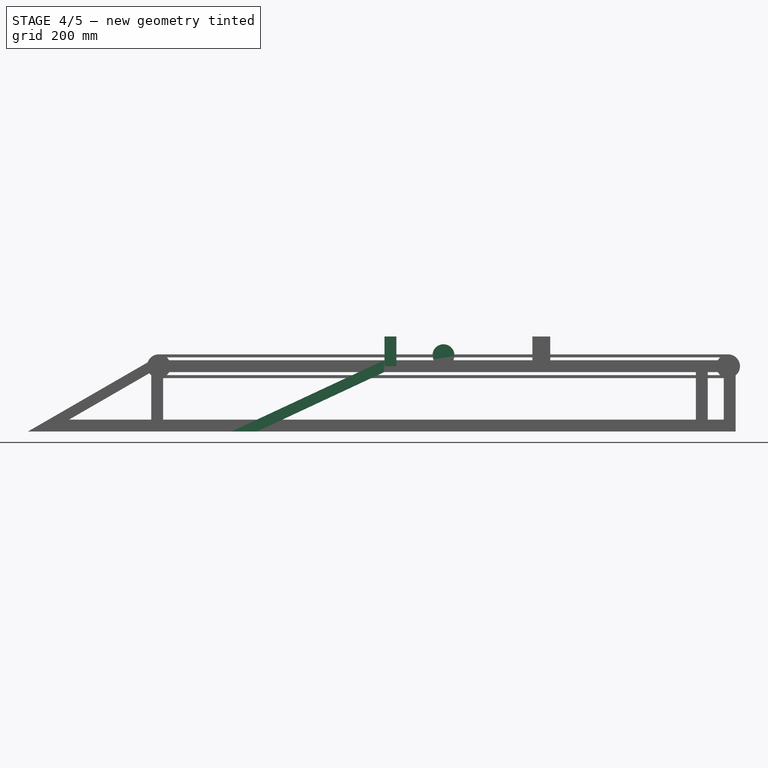
[diagram: stage 4 of 5 — front view after this stage's code; geometry added in this stage tinted green]
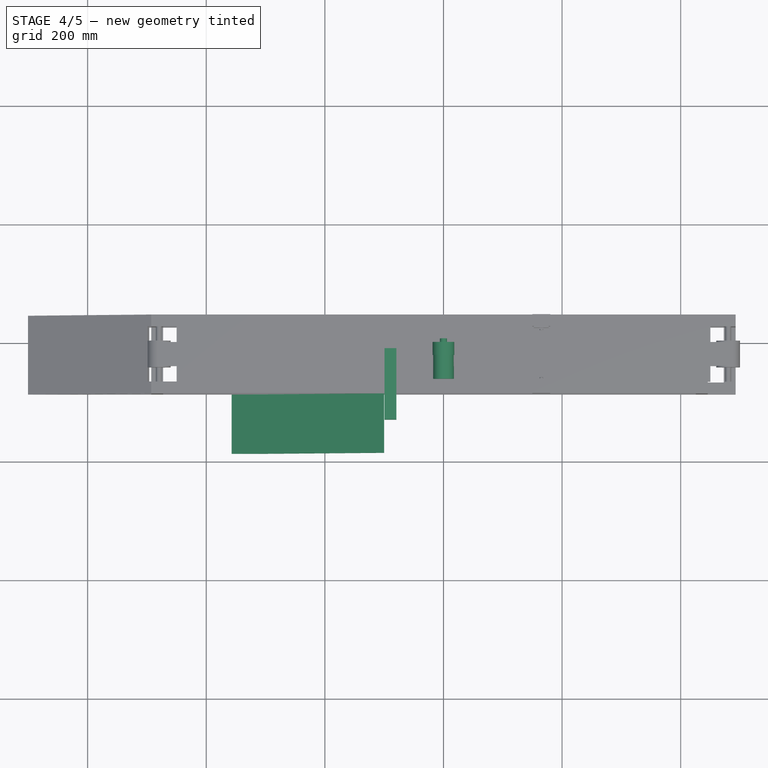
[diagram: stage 4 of 5 — top view after this stage's code; geometry added in this stage tinted green]
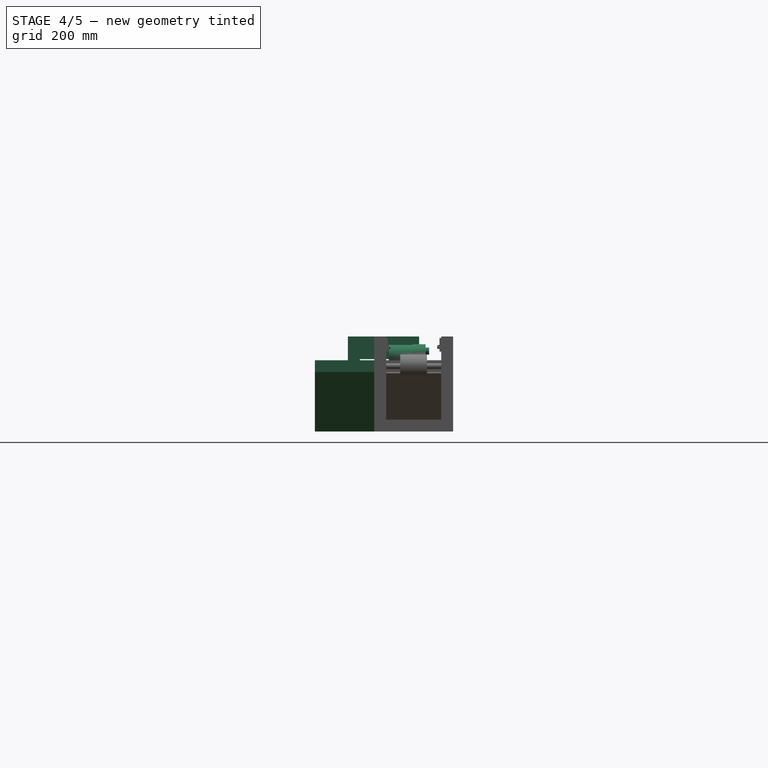
[diagram: stage 4 of 5 — right view after this stage's code; geometry added in this stage tinted green]
FEATURE [PartDesign::Body] Body001  label="브라켓"
  Group = -> [Sketch018,Pad013,Sketch019,Pad014,Sketch020,Pocket003,Fillet,Sketch021,Pocket004]
  Origin = -> Origin001
  Placement = pos=(445.5,-85,0) rot=(0,1,0;1.5708rad)
  Tip = -> Pocket004
FEATURE [Sketcher::SketchObject] Sketch022
  FullyConstrained = true
  MapMode = 5
  Placement = pos=(0,0,0) rot=(1,0,0;1.5708rad)
  Support = -> [XZ_Plane002]
  sketch-geometry (1):
    g0: Circle CenterX=0 CenterY=18.5 CenterZ=0 NormalX=0 NormalY=0 NormalZ=1 AngleXU=0 Radius=18.5
  constraints (3):
    c: PointOnObject(g0,g-2)
    c: Diameter(g0) = 37
    c: PointOnObject(g-1,g0)
FEATURE [PartDesign::Pad] Pad015
  Direction = (0,-1,2e-16)
  Length = 22
  Length2 = 10
  Placement = pos=(0,0,0) rot=(1,0,0;1.5708rad)
  Profile = -> Sketch022
  ReferenceAxis = -> Sketch022 [N_Axis]
  Type = 0
FEATURE [Sketcher::SketchObject] Sketch023
  ExternalGeometry = -> [Pad015]
  FullyConstrained = true
  MapMode = 5
  Placement = pos=(0,-22,9.7e-15) rot=(1,0,0;1.5708rad)
  Support = -> [Pad015]
  sketch-geometry (1):
    g0: Circle CenterX=0 CenterY=18.5 CenterZ=0 NormalX=0 NormalY=0 NormalZ=1 AngleXU=0 Radius=17.5
  constraints (2):
    c: Coincident(g0,g-3)
    c: Diameter(g0) = 35
FEATURE [PartDesign::Pad] Pad016
  BaseFeature = -> Pad015
  Direction = (0,-1,2e-16)
  Length = 40
  Length2 = 10
  Placement = pos=(0,0,0) rot=(1,0,0;1.5708rad)
  Profile = -> Sketch023
  ReferenceAxis = -> Sketch023 [N_Axis]
  Type = 0
FEATURE [Sketcher::SketchObject] Sketch024
  ExternalGeometry = -> [Pad016]
  FullyConstrained = true
  MapMode = 5
  Placement = pos=(0,0,0) rot=(-1,0,0;1.5708rad)
  Support = -> [Pad016]
  sketch-geometry (1):
    g0: Circle CenterX=0 CenterY=-25.5 CenterZ=0 NormalX=0 NormalY=0 NormalZ=1 AngleXU=0 Radius=6
  constraints (3):
    c: PointOnObject(g0,g-2)
    c: Diameter(g0) = 12
    c: DistanceY(g0,g-3) = 7
FEATURE [PartDesign::Pad] Pad017
  BaseFeature = -> Pad016
  Direction = (0,1,-2e-16)
  Length = 6
  Length2 = 10
  Placement = pos=(0,0,0) rot=(1,0,0;1.5708rad)
  Profile = -> Sketch024
  ReferenceAxis = -> Sketch024 [N_Axis]
  Type = 0
FEATURE [Sketcher::SketchObject] Sketch040
  ExternalGeometry = -> [Pad028]
  FullyConstrained = true
  MapMode = 5
  Placement = pos=(0,-61.5,2.012e-13) rot=(-1,0,0;1.5708rad)
  Support = -> [Pad028]
  sketch-geometry (1):
    g0: Circle CenterX=165 CenterY=-32.5 CenterZ=0 NormalX=0 NormalY=0 NormalZ=1 AngleXU=0 Radius=3
  constraints (3):
    c: Diameter(g0) = 6
    c: DistanceX(g-4,g0) = 3.5
    c: DistanceY(g-4,g0) = 3.5
FEATURE [PartDesign::Pad] Pad029
  BaseFeature = -> Pad028
  Direction = (0,1,-2.9e-15)
  Length = 2
  Length2 = 10
  Placement = pos=(0,0,0) rot=(1,0,0;1.5708rad)
  Profile = -> Sketch040
  ReferenceAxis = -> Sketch040 [N_Axis]
  Type = 0
FEATURE [PartDesign::Fillet] Fillet003
  Base = -> Pad029 [Edge334]
  BaseFeature = -> Pad029
  Placement = pos=(0,0,0) rot=(1,0,0;1.5708rad)
  Radius = 0.5
  SupportTransform = false
  UseAllEdges = false
FEATURE [Sketcher::SketchObject] Sketch041
  FullyConstrained = false
  MapMode = 5
  Support = -> [XY_Plane003]
  sketch-geometry (4):
    g0: LineSegment StartX=-99.365 StartY=-110.838 StartZ=0 EndX=-79.365 EndY=-110.838 EndZ=0
    g1: LineSegment StartX=-79.365 StartY=-110.838 StartZ=0 EndX=-79.365 EndY=-130.838 EndZ=0
    g2: LineSegment StartX=-79.365 StartY=-130.838 StartZ=0 EndX=-99.365 EndY=-130.838 EndZ=0
    g3: LineSegment StartX=-99.365 StartY=-130.838 StartZ=0 EndX=-99.365 EndY=-110.838 EndZ=0
  constraints (10):
    c: Coincident(g0,g1)
    c: Coincident(g1,g2)
    c: Coincident(g2,g3)
    c: Coincident(g3,g0)
    c: Horizontal(g0)
    c: Horizontal(g2)
    c: Vertical(g1)
    c: Vertical(g3)
    c: Equal(g0,g1)
    c: DistanceX(g0,g0) = 20
FEATURE [PartDesign::Pad] Pad030
  Direction = (0,0,1)
  Length = 50
  Length2 = 10
  Profile = -> Sketch041
  ReferenceAxis = -> Sketch041 [N_Axis]
  Type = 0
FEATURE [Sketcher::SketchObject] Sketch042
  FullyConstrained = true
  MapMode = 5
  Placement = pos=(0,-110.838,0) rot=(0,0.707107,0.707107;3.14159rad)
  Support = -> [Pad030]
FEATURE [PartDesign::Pad] Pad031
  BaseFeature = -> Pad030
  Direction = (0,1,0)
  Length = 100
  Length2 = 10
  Profile = -> Pad030 [Face1]
  Type = 0
FEATURE [Sketcher::SketchObject] Sketch043
  ExternalGeometry = -> [Pad031]
  FullyConstrained = true
  MapMode = 5
  Placement = pos=(0,-10.8378,0) rot=(0,0.707107,0.707107;3.14159rad)
  Support = -> [Pad031]
  sketch-geometry (4):
    g0: LineSegment StartX=79.365 StartY=0 StartZ=0 EndX=99.365 EndY=0 EndZ=0
    g1: LineSegment StartX=99.365 StartY=0 StartZ=0 EndX=99.365 EndY=12 EndZ=0
    g2: LineSegment StartX=99.365 StartY=12 StartZ=0 EndX=79.365 EndY=12 EndZ=0
    g3: LineSegment StartX=79.365 StartY=12 StartZ=0 EndX=79.365 EndY=0 EndZ=0
  constraints (11):
    c: Coincident(g0,g1)
    c: Coincident(g1,g2)
    c: Coincident(g2,g3)
    c: Coincident(g3,g0)
    c: Horizontal(g0)
    c: Horizontal(g2)
    c: Vertical(g1)
    c: Vertical(g3)
    c: Coincident(g0,g-3)
    c: PointOnObject(g1,g-4)
    c: DistanceY(g1,g1) = 12
FEATURE [PartDesign::Pocket] Pocket008
  BaseFeature = -> Pad031
  Direction = (0,-1,2e-16)
  Length = 100
  Length2 = 5
  Profile = -> Sketch043
  ReferenceAxis = -> Sketch043 [N_Axis]
  Type = 0
FEATURE [Sketcher::SketchObject] Sketch044
  ExternalGeometry = -> [Fillet003]
  FullyConstrained = true
  MapMode = 5
  Placement = pos=(0,-86.5,8.67e-14) rot=(1,0,0;1.5708rad)
  Support = -> [Fillet003]
  sketch-geometry (4):
    g0: LineSegment StartX=-100 StartY=10 StartZ=0 EndX=-100 EndY=-10 EndZ=0
    g1: LineSegment StartX=-100 StartY=-10 StartZ=0 EndX=-314.451 EndY=-110 EndZ=0
    g2: LineSegment StartX=-314.451 StartY=-110 StartZ=0 EndX=-357.341 EndY=-110 EndZ=0
    g3: LineSegment StartX=-357.341 StartY=-110 StartZ=0 EndX=-100 EndY=10 EndZ=0
  constraints (13):
    c: PointOnObject(g0,g-4)
    c: PointOnObject(g0,g-6)
    c: Vertical(g0)
    c: Coincident(g0,g1)
    c: PointOnObject(g1,g-3)
    c: Coincident(g1,g2)
    c: PointOnObject(g2,g-3)
    c: Coincident(g2,g3)
    c: PointOnObject(g3,g-4)
    c: PointOnObject(g3,g0)
    c: Parallel(g1,g3)
    c: Angle(g3,g0) = 1.13446
    c: DistanceX(g0,g-1) = 100
FEATURE [PartDesign::Pad] Pad032
  BaseFeature = -> Fillet003
  Direction = (0,-1,2.7e-15)
  Length = 100
  Length2 = 10
  Placement = pos=(0,0,0) rot=(1,0,0;1.5708rad)
  Profile = -> Sketch044
  ReferenceAxis = -> Sketch044 [N_Axis]
  Type = 0
FEATURE [Sketcher::SketchObject] Sketch046
  ExternalGeometry = -> [Pad032]
  FullyConstrained = true
  MapMode = 5
  Placement = pos=(0,4.4e-15,20) rot=(0,0,1;3.14159rad)
  Support = -> [Pad032]
  constraints (8):
    c: DistanceY(g-5,g-4) = 133
    c: DistanceX(g-4,g-4) = 207.846
    c: DistanceY(g-5,g-8) = 233
    c: DistanceX(g-10,g-9) = 998.944
    c: DistanceX(g-10,g-5) = 1200.58
    c: DistanceX(g-7,g-7) = 257.341
    c: DistanceX(g-12,g-11) = 985.46
    c: DistanceX(g-13,g-4) = 938.46
FEATURE [Sketcher::SketchObject] Sketch047
  ExternalGeometry = -> [Pocket008]
  FullyConstrained = true
  MapMode = 5
  Placement = pos=(0,0,0) rot=(0.57735,0.57735,0.57735;2.0944rad)
  Support = -> [YZ_Plane003]
  constraints (1):
    c: DistanceY(g-1,g-3) = 50
FEATURE [PartDesign::Body] Body003
  Group = -> [Sketch041,Pad030,Sketch042,Pad031,Sketch043,Pocket008,Sketch047]
  Origin = -> Origin003
  Placement = pos=(-94,-46,10) rot=(0,0,-1;0.785398rad)
  Tip = -> Pocket008
FEATURE [Sketcher::SketchObject] Sketch048
  ExternalGeometry = -> [Pad032]
  FullyConstrained = false
  MapMode = 5
  Placement = pos=(0,-86.5,8.67e-14) rot=(1,0,0;1.5708rad)
  Support = -> [Pad032]
  sketch-geometry (1):
    g0: LineSegment StartX=-256.845 StartY=60 StartZ=0 EndX=-157.845 EndY=60 EndZ=0
  constraints (8):
    c: Horizontal(g0)
    c: DistanceY(g-9,g0) = 170
    c: Angle(g-5,g-20) = 1.0472
    c: Angle(g-22,g-21) = 1.13446
    c: DistanceY(g-8,g-20) = 120
    c: Diameter(g-3) = 40
    c: DistanceY(g-12,g-12) = 20
    c: DistanceX(g-10,g-10) = 20
FEATURE [PartDesign::Body] Body  label="컨베이어 벨트"
  Group = -> [Sketch,Pad,Sketch001,Pocket,DatumPlane,Sketch002,Pad001,Sketch003,Pad002,Sketch004,Pad003,Sketch005,Pocket001,DatumPlane001,Sketch006,Pad004,Sketch007,Pad005,Sketch008,Pad006,DatumPlane002,Sketch009,Pad007,Mirrored,Sketch011,Pad008,Sketch012,Pad009,Sketch013,Pad010,Sketch014,Pad011,Sketch028,Pocket007,Sketch029,Pad019,Sketch030,Pad020,Sketch031,Pad021,Sketch032,Pad022,Sketch033,Pad023,Sketch034,+17 more]
  Origin = -> Origin
  Tip = -> Pad032
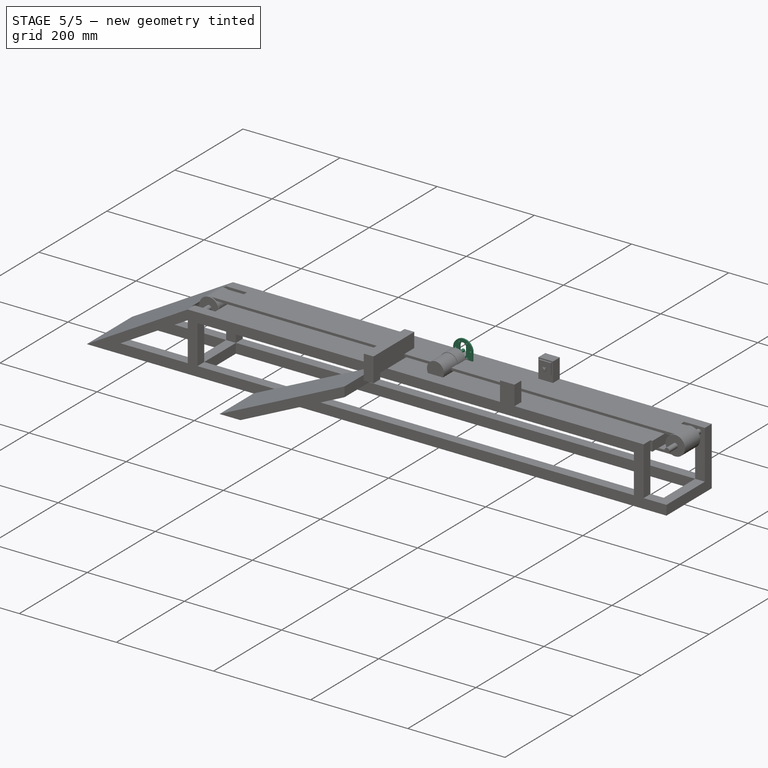
[diagram: stage 5 of 5 — iso view after this stage's code; geometry added in this stage tinted green]
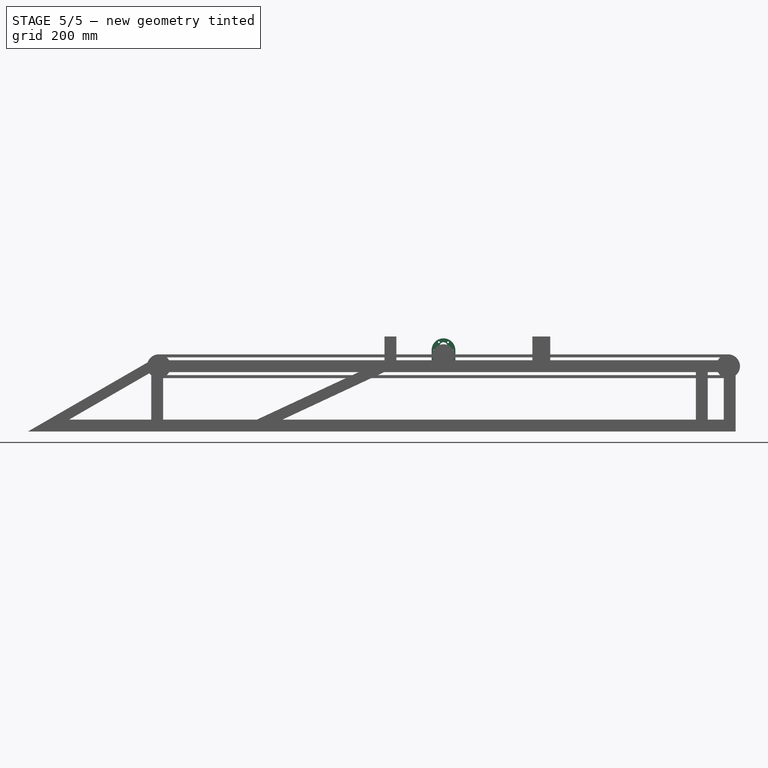
[diagram: stage 5 of 5 — front view after this stage's code; geometry added in this stage tinted green]
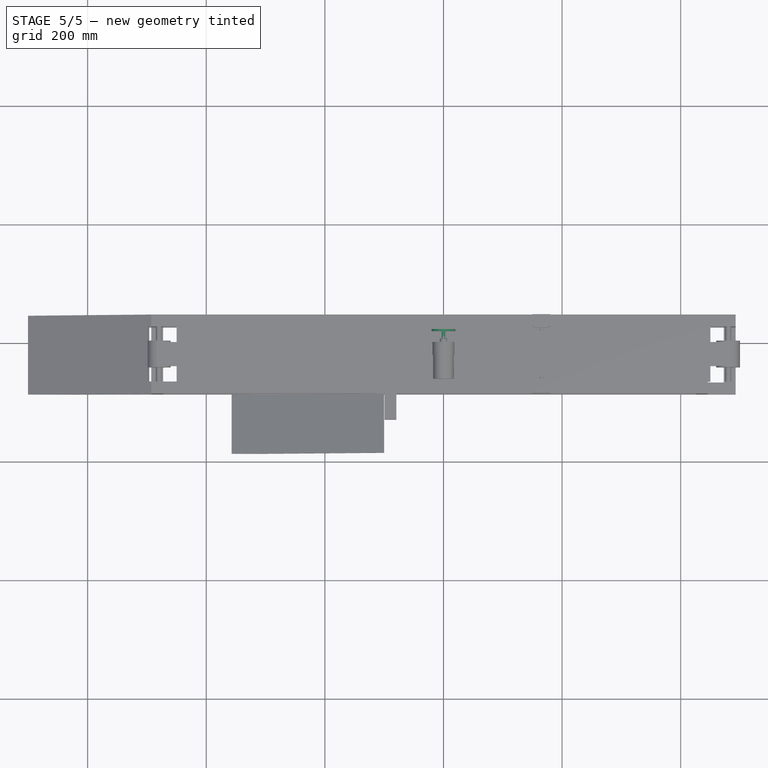
[diagram: stage 5 of 5 — top view after this stage's code; geometry added in this stage tinted green]
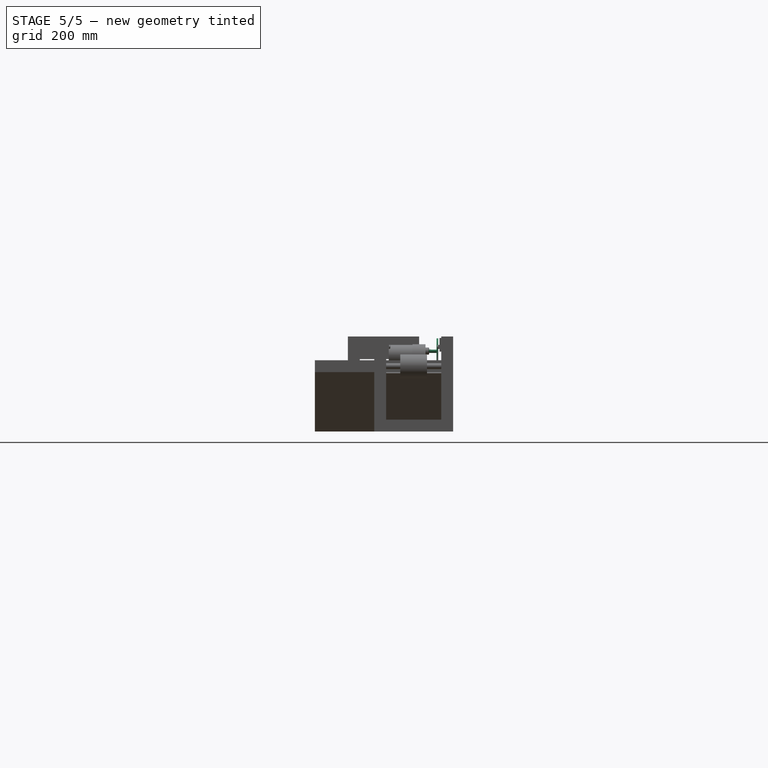
[diagram: stage 5 of 5 — right view after this stage's code; geometry added in this stage tinted green]
FEATURE [Sketcher::SketchObject] Sketch018
  FullyConstrained = true
  MapMode = 5
  Support = -> [XY_Plane001]
  sketch-geometry (4):
    g0: LineSegment StartX=-20 StartY=21.5 StartZ=0 EndX=20 EndY=21.5 EndZ=0
    g1: LineSegment StartX=20 StartY=21.5 StartZ=0 EndX=20 EndY=-21.5 EndZ=0
    g2: LineSegment StartX=20 StartY=-21.5 StartZ=0 EndX=-20 EndY=-21.5 EndZ=0
    g3: LineSegment StartX=-20 StartY=-21.5 StartZ=0 EndX=-20 EndY=21.5 EndZ=0
  constraints (12):
    c: Coincident(g0,g1)
    c: Coincident(g1,g2)
    c: Coincident(g2,g3)
    c: Coincident(g3,g0)
    c: Horizontal(g0)
    c: Horizontal(g2)
    c: Vertical(g1)
    c: Vertical(g3)
    c: DistanceX(g0,g0) = 40
    c: DistanceY(g1,g1) = 43
    c: DistanceY(g-1,g0) = 21.5
    c: DistanceX(g-1,g0) = 20
FEATURE [PartDesign::Pad] Pad013
  Direction = (0,0,1)
  Length = 3
  Length2 = 10
  Profile = -> Sketch018
  ReferenceAxis = -> Sketch018 [N_Axis]
  Type = 0
FEATURE [Sketcher::SketchObject] Sketch019
  ExternalGeometry = -> [Pad013]
  FullyConstrained = true
  MapMode = 5
  Placement = pos=(0,21.5,0) rot=(0,0.707107,0.707107;3.14159rad)
  Support = -> [Pad013]
  sketch-geometry (14):
    g0: LineSegment StartX=-20 StartY=3 StartZ=0 EndX=20 EndY=3 EndZ=0
    g1: LineSegment StartX=20 StartY=3 StartZ=0 EndX=20 EndY=27 EndZ=0
    g2: LineSegment StartX=-20 StartY=27 StartZ=0 EndX=-20 EndY=3 EndZ=0
    g3: ArcOfCircle CenterX=1.2e-15 CenterY=27 CenterZ=0 NormalX=0 NormalY=0 NormalZ=1 AngleXU=0 Radius=20 StartAngle=0 EndAngle=3.14159
    g4: Circle CenterX=-7.75 CenterY=40.42 CenterZ=0 NormalX=0 NormalY=0 NormalZ=1 AngleXU=0 Radius=1.5
    g5: Circle CenterX=7.75 CenterY=40.42 CenterZ=0 NormalX=0 NormalY=0 NormalZ=1 AngleXU=0 Radius=1.5
    g6: Circle CenterX=15.5 CenterY=27 CenterZ=0 NormalX=0 NormalY=0 NormalZ=1 AngleXU=0 Radius=1.5
    g7: Circle CenterX=-15.5 CenterY=27 CenterZ=0 NormalX=0 NormalY=0 NormalZ=1 AngleXU=0 Radius=1.5
    g8: Circle CenterX=-7.75 CenterY=13.58 CenterZ=0 NormalX=0 NormalY=0 NormalZ=1 AngleXU=0 Radius=1.5
    g9: Circle CenterX=7.75 CenterY=13.58 CenterZ=0 NormalX=0 NormalY=0 NormalZ=1 AngleXU=0 Radius=1.5
    g10: ArcOfCircle CenterX=0 CenterY=34 CenterZ=0 NormalX=0 NormalY=0 NormalZ=1 AngleXU=0 Radius=6.5 StartAngle=0 EndAngle=3.14159
    g11: ArcOfCircle CenterX=0 CenterY=20 CenterZ=0 NormalX=0 NormalY=0 NormalZ=1 AngleXU=0 Radius=6.5 StartAngle=3.14159 EndAngle=6.28319
    g12: LineSegment StartX=-6.5 StartY=34 StartZ=0 EndX=-6.5 EndY=20 EndZ=0
    g13: LineSegment StartX=6.5 StartY=20 StartZ=0 EndX=6.5 EndY=34 EndZ=0
  constraints (38):
    c: Coincident(g0,g1)
    c: Coincident(g2,g0)
    c: Horizontal(g0)
    c: Vertical(g1)
    c: Vertical(g2)
    c: Coincident(g0,g-4)
    c: PointOnObject(g0,g-3)
    c: Tangent(g3,g1) = -1.5708
    c: Tangent(g3,g2) = -1.5708
    c: DistanceY(g-1,g1) = 27
    c: Horizontal(g5,g4)
    c: Horizontal(g7,g6)
    c: Horizontal(g9,g8)
    c: Diameter(g5) = 3
    c: DistanceX(g4,g5) = 15.5
    c: Horizontal(g6,g1)
    c: Vertical(g5,g9)
    c: Tangent(g10,g12) = -1.5708
    c: Tangent(g12,g11) = -1.5708
    c: Tangent(g11,g13) = -1.5708
    c: Tangent(g13,g10) = -1.5708
    c: Equal(g10,g11)
    c: PointOnObject(g10,g-2)
    c: PointOnObject(g11,g-2)
    c: DistanceX(g10,g10) = 13
    c: DistanceY(g-1,g11) = 20
    c: DistanceY(g-1,g10) = 34
    c: DistanceX(g9,g0) = 12.25
    c: DistanceY(g-1,g9) = 13.58
    c: DistanceX(g0,g8) = 12.25
    c: DistanceY(g-1,g5) = 40.42
    c: DistanceX(g6,g1) = 4.5
    c: DistanceX(g2,g7) = 4.5
    c: Diameter(g4) = 3
    c: Diameter(g7) = 3
    c: Diameter(g8) = 3
    c: Diameter(g9) = 3
    c: Diameter(g6) = 3
FEATURE [PartDesign::Pad] Pad014
  BaseFeature = -> Pad013
  Direction = (0,1,-2e-16)
  Length = 3
  Length2 = 10
  Profile = -> Sketch019
  ReferenceAxis = -> Sketch019 [N_Axis]
  Reversed = true
  Type = 0
FEATURE [Sketcher::SketchObject] Sketch020
  ExternalGeometry = -> [Pad014]
  FullyConstrained = true
  MapMode = 5
  Placement = pos=(0,0,3) rot=(0,0,1;0rad)
  Support = -> [Pad014]
  sketch-geometry (4):
    g0: Circle CenterX=15 CenterY=10.5 CenterZ=0 NormalX=0 NormalY=0 NormalZ=1 AngleXU=0 Radius=2
    g1: Circle CenterX=15 CenterY=-13.5 CenterZ=0 NormalX=0 NormalY=0 NormalZ=1 AngleXU=0 Radius=2
    g2: Circle CenterX=-15 CenterY=10.5 CenterZ=0 NormalX=0 NormalY=0 NormalZ=1 AngleXU=0 Radius=2
    g3: Circle CenterX=-15 CenterY=-13.5 CenterZ=0 NormalX=0 NormalY=0 NormalZ=1 AngleXU=0 Radius=2
  constraints (12):
    c: DistanceY(g3,g2) = 24
    c: DistanceX(g3,g1) = 30
    c: Horizontal(g0,g2)
    c: Horizontal(g1,g3)
    c: Vertical(g1,g0)
    c: Vertical(g2,g3)
    c: Diameter(g1) = 4
    c: Diameter(g0) = 4
    c: Diameter(g2) = 4
    c: Diameter(g3) = 4
    c: DistanceX(g-5,g3) = 5
    c: DistanceY(g-5,g3) = 8
FEATURE [PartDesign::Pocket] Pocket003
  BaseFeature = -> Pad014
  Direction = (0,0,-1)
  Length = 5
  Length2 = 5
  Profile = -> Sketch020
  ReferenceAxis = -> Sketch020 [N_Axis]
  Type = 1
FEATURE [PartDesign::Fillet] Fillet
  Base = -> Pocket003 [Edge32]
  BaseFeature = -> Pocket003
  Radius = 1
  SupportTransform = false
  UseAllEdges = false
FEATURE [Sketcher::SketchObject] Sketch021
  ExternalGeometry = -> [Fillet]
  FullyConstrained = true
  MapMode = 5
  Placement = pos=(-20,0,0) rot=(0.57735,-0.57735,-0.57735;2.0944rad)
  Support = -> [Fillet]
  sketch-geometry (3):
    g0: ArcOfCircle CenterX=-17.5 CenterY=4 CenterZ=0 NormalX=0 NormalY=0 NormalZ=1 AngleXU=0 Radius=4.12311 StartAngle=3.38657 EndAngle=4.46741
    g1: LineSegment StartX=-21.5 StartY=3 StartZ=0 EndX=-21.5 EndY=0 EndZ=0
    g2: LineSegment StartX=-21.5 StartY=0 StartZ=0 EndX=-18.5 EndY=0 EndZ=0
  constraints (7):
    c: Coincident(g0,g-4)
    c: PointOnObject(g0,g-1)
    c: Coincident(g0,g-5)
    c: Coincident(g0,g1)
    c: Coincident(g1,g-4)
    c: Coincident(g1,g2)
    c: Coincident(g2,g0)
FEATURE [PartDesign::Pocket] Pocket004
  BaseFeature = -> Fillet
  Direction = (1,0,0)
  Length = 5
  Length2 = 5
  Profile = -> Sketch021
  ReferenceAxis = -> Sketch021 [N_Axis]
  Type = 1
FEATURE [PartDesign::Fillet] Fillet001
  Base = -> Pad017 [Edge7]
  BaseFeature = -> Pad017
  Placement = pos=(0,0,0) rot=(1,0,0;1.5708rad)
  Radius = 1
  SupportTransform = false
  UseAllEdges = false
FEATURE [Sketcher::SketchObject] Sketch025
  ExternalGeometry = -> [Fillet001]
  FullyConstrained = true
  MapMode = 5
  Placement = pos=(0,6,-2.7e-15) rot=(-1,0,0;1.5708rad)
  Support = -> [Fillet001]
  sketch-geometry (1):
    g0: Circle CenterX=0 CenterY=-25.5 CenterZ=0 NormalX=0 NormalY=0 NormalZ=1 AngleXU=0 Radius=3
  constraints (2):
    c: Coincident(g0,g-3)
    c: Diameter(g0) = 6
FEATURE [PartDesign::Pad] Pad018
  BaseFeature = -> Fillet001
  Direction = (0,1,-2e-16)
  Length = 15
  Length2 = 10
  Placement = pos=(0,0,0) rot=(1,0,0;1.5708rad)
  Profile = -> Sketch025
  ReferenceAxis = -> Sketch025 [N_Axis]
  Type = 0
FEATURE [Sketcher::SketchObject] Sketch026
  ExternalGeometry = -> [Pad018]
  FullyConstrained = true
  MapMode = 5
  Placement = pos=(2.1e-15,21,-8.2e-15) rot=(-1,0,0;1.5708rad)
  Support = -> [Pad018]
  sketch-geometry (2):
    g0: LineSegment StartX=-1.65831 StartY=-28 StartZ=0 EndX=1.65831 EndY=-28 EndZ=0
    g1: ArcOfCircle CenterX=-1.2e-15 CenterY=-25.5 CenterZ=0 NormalX=0 NormalY=0 NormalZ=1 AngleXU=0 Radius=3 StartAngle=4.1267 EndAngle=5.29807
  constraints (8):
    c: PointOnObject(g0,g-3)
    c: PointOnObject(g0,g-3)
    c: Horizontal(g0)
    c: Diameter(g-3) = 6
    c: DistanceY(g0,g-3) = 2.5
    c: Coincident(g1,g0)
    c: Coincident(g1,g0)
    c: Tangent(g1,g-3)
FEATURE [PartDesign::Pocket] Pocket005
  BaseFeature = -> Pad018
  Direction = (-1e-16,-1,2e-16)
  Length = 12
  Length2 = 5
  Placement = pos=(0,0,0) rot=(1,0,0;1.5708rad)
  Profile = -> Sketch026
  ReferenceAxis = -> Sketch026 [N_Axis]
  Type = 0
FEATURE [Sketcher::SketchObject] Sketch027
  ExternalGeometry = -> [Pocket005]
  FullyConstrained = true
  MapMode = 5
  Placement = pos=(0,0,0) rot=(-1,0,0;1.5708rad)
  Support = -> [Pocket005]
  sketch-geometry (6):
    g0: Circle CenterX=-7.75 CenterY=-5.08 CenterZ=0 NormalX=0 NormalY=0 NormalZ=1 AngleXU=0 Radius=1.5
    g1: Circle CenterX=7.75 CenterY=-5.08 CenterZ=0 NormalX=0 NormalY=0 NormalZ=1 AngleXU=0 Radius=1.5
    g2: Circle CenterX=-15.5 CenterY=-18.5 CenterZ=0 NormalX=0 NormalY=0 NormalZ=1 AngleXU=0 Radius=1.5
    g3: Circle CenterX=15.5 CenterY=-18.5 CenterZ=0 NormalX=0 NormalY=0 NormalZ=1 AngleXU=0 Radius=1.5
    g4: Circle CenterX=7.75 CenterY=-31.92 CenterZ=0 NormalX=0 NormalY=0 NormalZ=1 AngleXU=0 Radius=1.5
    g5: Circle CenterX=-7.75 CenterY=-31.92 CenterZ=0 NormalX=0 NormalY=0 NormalZ=1 AngleXU=0 Radius=1.5
  constraints (18):
    c: Horizontal(g0,g1)
    c: Horizontal(g2,g3)
    c: Horizontal(g4,g5)
    c: Vertical(g0,g5)
    c: Diameter(g0) = 3
    c: Diameter(g1) = 3
    c: Diameter(g3) = 3
    c: Diameter(g4) = 3
    c: Diameter(g5) = 3
    c: Diameter(g2) = 3
    c: DistanceX(g0,g1) = 15.5
    c: DistanceY(g1,g-1) = 5.08
    c: DistanceX(g-1,g1) = 7.75
    c: DistanceX(g-3,g3) = 15.5
    c: Horizontal(g3,g-3)
    c: DistanceX(g2,g-3) = 15.5
    c: DistanceY(g4,g1) = 26.84
    c: DistanceX(g-3,g4) = 7.75
FEATURE [PartDesign::Pocket] Pocket006
  BaseFeature = -> Pocket005
  Direction = (0,-1,2e-16)
  Length = 15
  Length2 = 5
  Placement = pos=(0,0,0) rot=(1,0,0;1.5708rad)
  Profile = -> Sketch027
  ReferenceAxis = -> Sketch027 [N_Axis]
  Type = 0
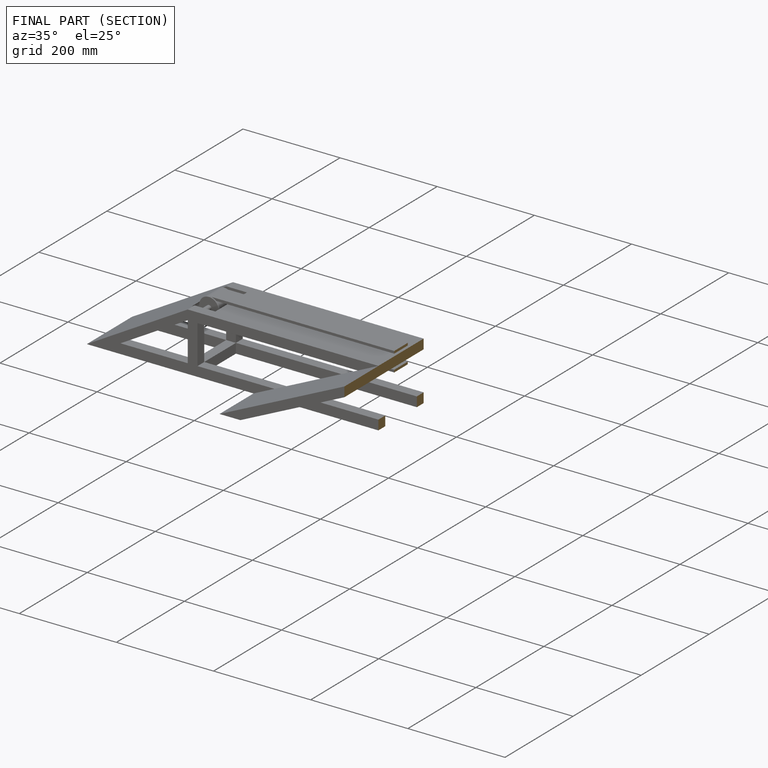
[diagram: finished part — half-section view (interior)]
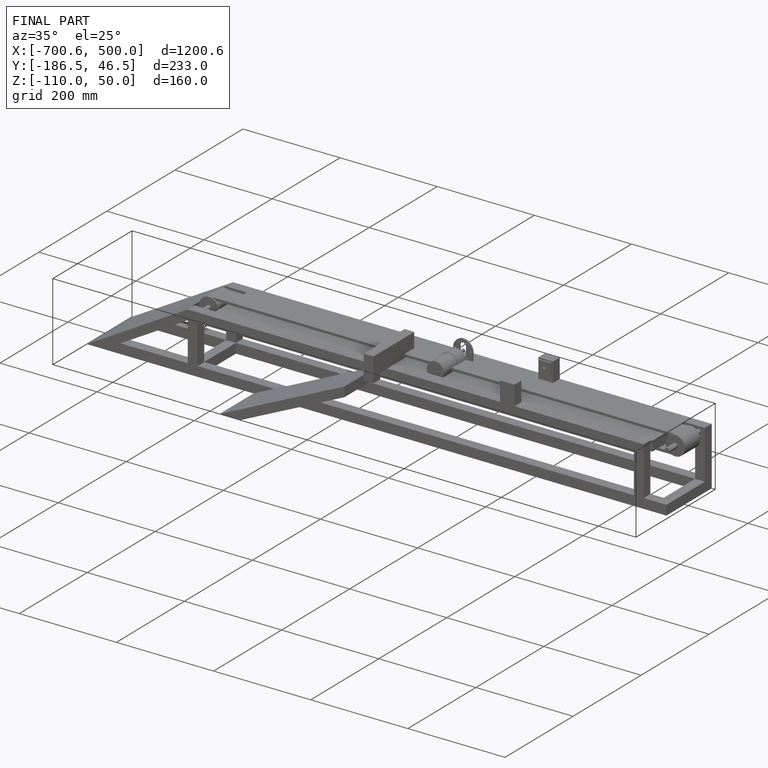
[diagram: finished part — iso view with bounding-box wireframe]
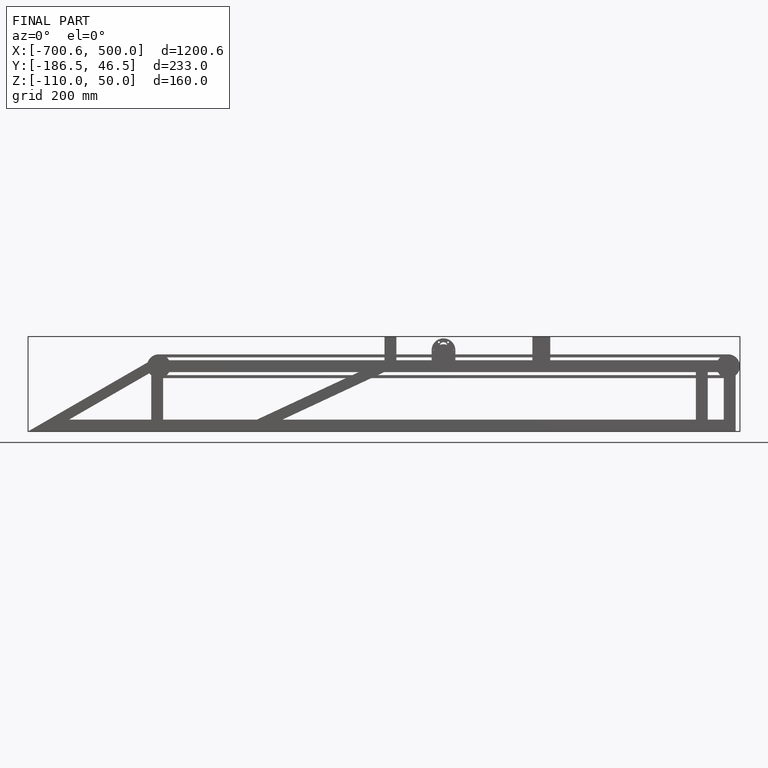
[diagram: finished part — front view with bounding-box wireframe]
